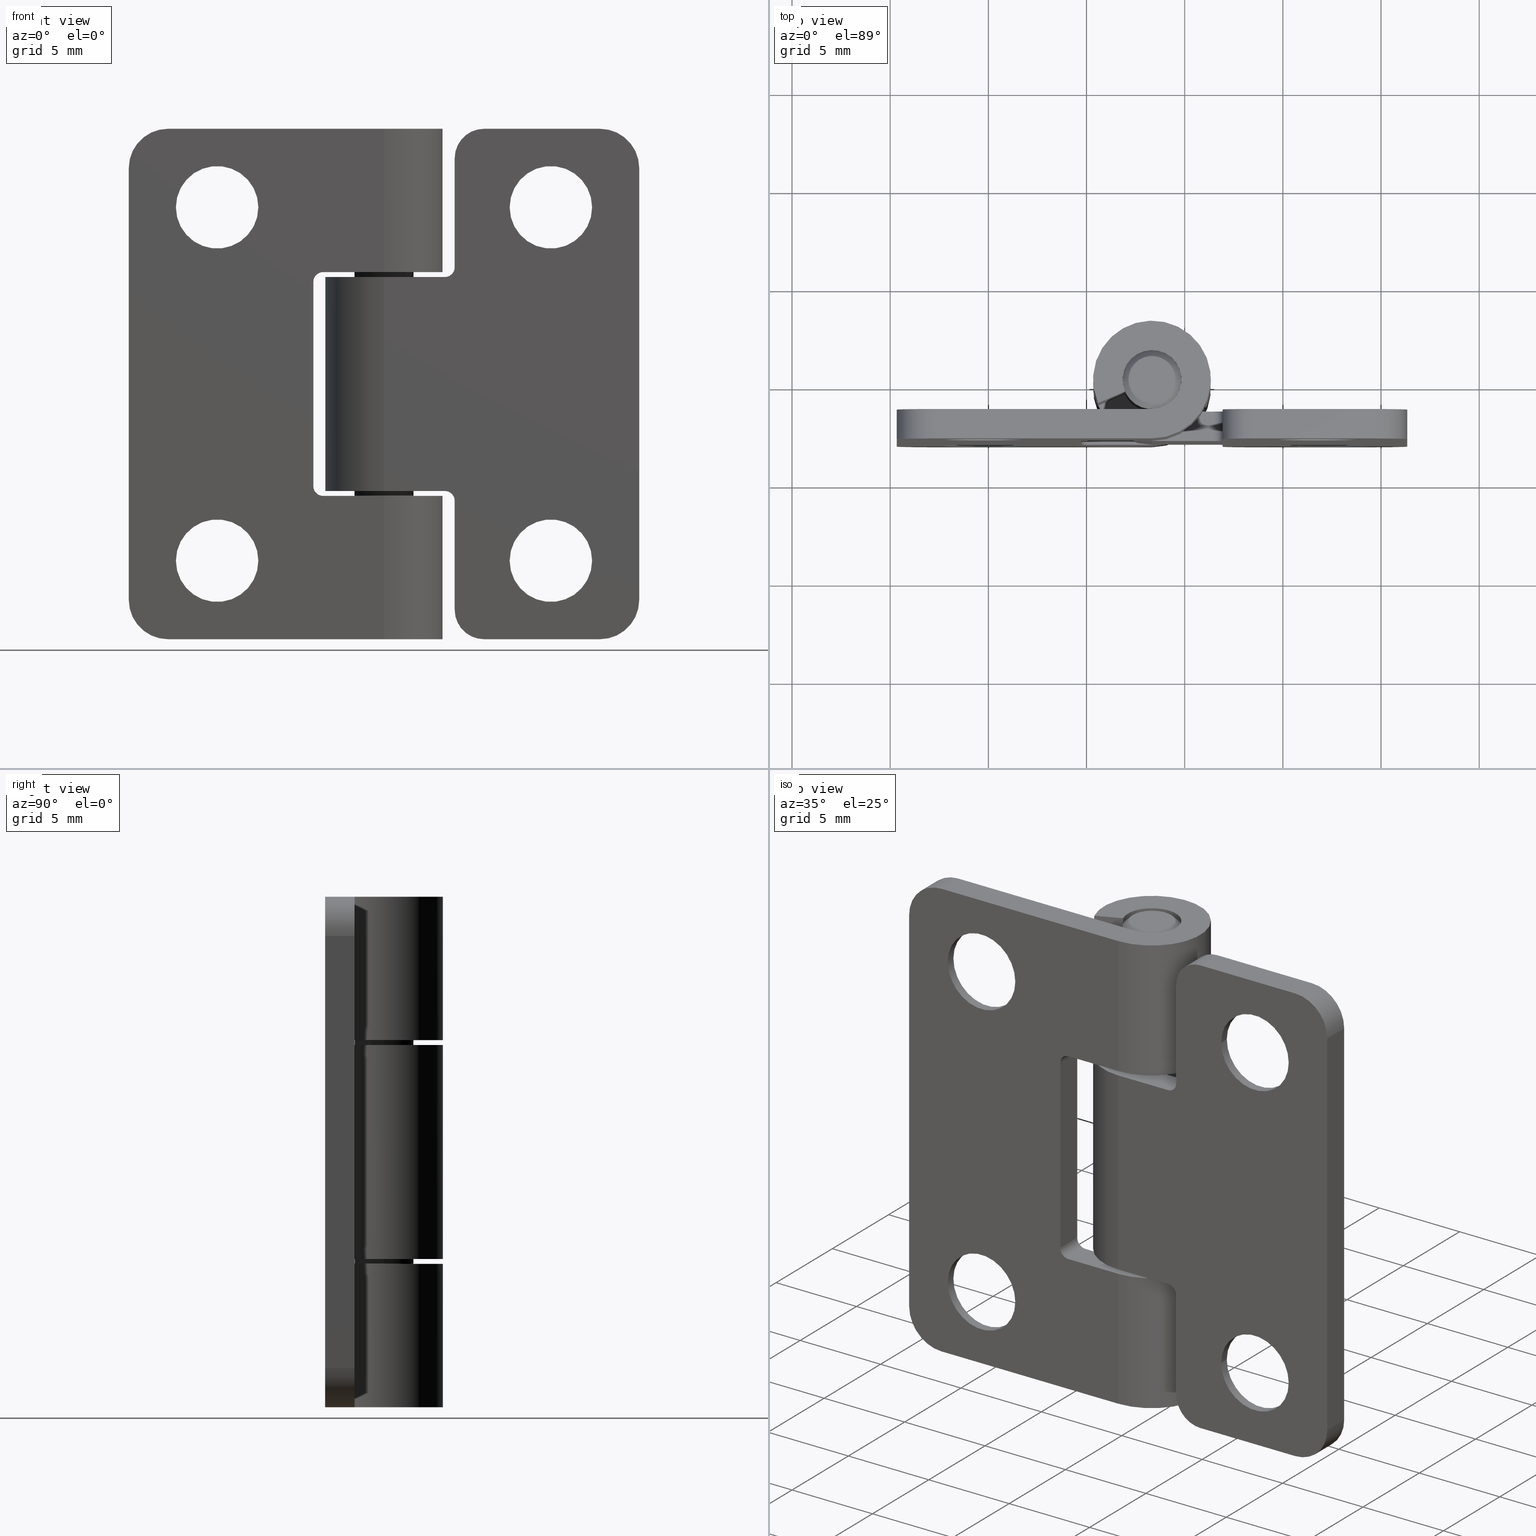
[diagram: canonical four-view strip — front | top / right | iso, engineering-drawing reading convention]
A machine part, canonical four-view strip (front | top / right | iso — engineering-drawing reading convention). The complete STEP part file that produces these views, byte-faithful:
ISO-10303-21;
HEADER;
/* Generated by software containing ST-Developer
 * from STEP Tools, Inc. (www.steptools.com) 
 */

FILE_DESCRIPTION(
/* description */ (''),
/* implementation_level */ '2;1');

FILE_NAME(
/* name */ '\\\\SYNOLOGYNAS\\web\\db2\\H-TC2626-15\\\X2\B3C4BA74\X0\\\
H-TC2626-15.stp',
/* time_stamp */ '2023-02-22T13:30:52+09:00',
/* author */ ('user'),
/* organization */ (''),
/* preprocessor_version */ 'ST-DEVELOPER v15.6',
/* originating_system */ 'Autodesk Inventor 2015',
/* authorisation */ '');

FILE_SCHEMA (('AUTOMOTIVE_DESIGN { 1 0 10303 214 3 1 1 }'));
ENDSEC;

DATA;
#10=MECHANICAL_DESIGN_GEOMETRIC_PRESENTATION_REPRESENTATION('',(#35,#36,
#37),#1503);
#11=(
CONVERSION_BASED_UNIT('degree',#12)
NAMED_UNIT(#26)
PLANE_ANGLE_UNIT()
);
#12=PLANE_ANGLE_MEASURE_WITH_UNIT(PLANE_ANGLE_MEASURE(0.01745329252),#1506);
#13=ITEM_DEFINED_TRANSFORMATION($,$,#870,#971);
#14=ITEM_DEFINED_TRANSFORMATION($,$,#915,#972);
#15=ITEM_DEFINED_TRANSFORMATION($,$,#960,#973);
#16=(
REPRESENTATION_RELATIONSHIP($,$,#1518,#1521)
REPRESENTATION_RELATIONSHIP_WITH_TRANSFORMATION(#13)
SHAPE_REPRESENTATION_RELATIONSHIP()
);
#17=(
REPRESENTATION_RELATIONSHIP($,$,#1519,#1521)
REPRESENTATION_RELATIONSHIP_WITH_TRANSFORMATION(#14)
SHAPE_REPRESENTATION_RELATIONSHIP()
);
#18=(
REPRESENTATION_RELATIONSHIP($,$,#1520,#1521)
REPRESENTATION_RELATIONSHIP_WITH_TRANSFORMATION(#15)
SHAPE_REPRESENTATION_RELATIONSHIP()
);
#19=CONTEXT_DEPENDENT_SHAPE_REPRESENTATION(#16,#1515);
#20=CONTEXT_DEPENDENT_SHAPE_REPRESENTATION(#17,#1516);
#21=CONTEXT_DEPENDENT_SHAPE_REPRESENTATION(#18,#1517);
#22=NEXT_ASSEMBLY_USAGE_OCCURRENCE('26_\X2\B0A0AC1C\X0\1:1',$,$,#1526,#1523,
$);
#23=NEXT_ASSEMBLY_USAGE_OCCURRENCE('26_\X2\B0A0AC1C\X0\2:1',$,$,#1526,#1524,
$);
#24=NEXT_ASSEMBLY_USAGE_OCCURRENCE('26_\X2\D540\X0\:1',$,$,#1526,#1525,
$);
#25=DIMENSIONAL_EXPONENTS(1.,0.,0.,0.,0.,0.,0.);
#26=DIMENSIONAL_EXPONENTS(0.,0.,0.,0.,0.,0.,0.);
#27=(
CONVERSION_BASED_UNIT('__CONSTANT UNIT inch',#28)
LENGTH_UNIT()
NAMED_UNIT(#25)
);
#28=LENGTH_MEASURE_WITH_UNIT(LENGTH_MEASURE(25.4),#1504);
#29=SHAPE_REPRESENTATION_RELATIONSHIP('SRR','None',#1518,#32);
#30=SHAPE_REPRESENTATION_RELATIONSHIP('SRR','None',#1519,#33);
#31=SHAPE_REPRESENTATION_RELATIONSHIP('SRR','None',#1520,#34);
#32=ADVANCED_BREP_SHAPE_REPRESENTATION($,(#38),#1499);
#33=ADVANCED_BREP_SHAPE_REPRESENTATION($,(#39),#1500);
#34=ADVANCED_BREP_SHAPE_REPRESENTATION($,(#40),#1501);
#35=STYLED_ITEM('',(#1542),#38);
#36=STYLED_ITEM('',(#1543),#39);
#37=STYLED_ITEM('',(#1544),#40);
#38=MANIFOLD_SOLID_BREP('\X2\C194B9ACB4DC\X0\2',#867);
#39=MANIFOLD_SOLID_BREP('\X2\C194B9ACB4DC\X0\2',#868);
#40=MANIFOLD_SOLID_BREP('\X2\C194B9ACB4DC\X0\3',#869);
#41=CONICAL_SURFACE('',#902,2.6,0.785398163397448);
#42=CONICAL_SURFACE('',#906,2.6,0.785398163397448);
#43=CONICAL_SURFACE('',#948,2.6,0.785398163397448);
#44=CONICAL_SURFACE('',#952,2.6,0.785398163397448);
#45=CONICAL_SURFACE('',#961,1.35,0.785398163397448);
#46=CONICAL_SURFACE('',#967,1.35,0.785398163397448);
#47=FACE_BOUND('',#143,.T.);
#48=FACE_BOUND('',#144,.T.);
#49=FACE_BOUND('',#154,.T.);
#50=FACE_BOUND('',#156,.T.);
#51=FACE_BOUND('',#158,.T.);
#52=FACE_BOUND('',#160,.T.);
#53=FACE_BOUND('',#163,.T.);
#54=FACE_BOUND('',#164,.T.);
#55=FACE_BOUND('',#170,.T.);
#56=FACE_BOUND('',#171,.T.);
#57=FACE_BOUND('',#184,.T.);
#58=FACE_BOUND('',#186,.T.);
#59=FACE_BOUND('',#188,.T.);
#60=FACE_BOUND('',#190,.T.);
#61=FACE_BOUND('',#194,.T.);
#62=FACE_BOUND('',#195,.T.);
#63=FACE_BOUND('',#198,.T.);
#64=FACE_BOUND('',#200,.T.);
#65=FACE_BOUND('',#203,.T.);
#66=PLANE('',#874);
#67=PLANE('',#880);
#68=PLANE('',#886);
#69=PLANE('',#890);
#70=PLANE('',#893);
#71=PLANE('',#900);
#72=PLANE('',#901);
#73=PLANE('',#910);
#74=PLANE('',#912);
#75=PLANE('',#914);
#76=PLANE('',#919);
#77=PLANE('',#920);
#78=PLANE('',#930);
#79=PLANE('',#935);
#80=PLANE('',#940);
#81=PLANE('',#943);
#82=PLANE('',#946);
#83=PLANE('',#956);
#84=PLANE('',#957);
#85=PLANE('',#958);
#86=PLANE('',#966);
#87=PLANE('',#969);
#88=FACE_OUTER_BOUND('',#137,.T.);
#89=FACE_OUTER_BOUND('',#138,.T.);
#90=FACE_OUTER_BOUND('',#139,.T.);
#91=FACE_OUTER_BOUND('',#140,.T.);
#92=FACE_OUTER_BOUND('',#141,.T.);
#93=FACE_OUTER_BOUND('',#142,.T.);
#94=FACE_OUTER_BOUND('',#145,.T.);
#95=FACE_OUTER_BOUND('',#146,.T.);
#96=FACE_OUTER_BOUND('',#147,.T.);
#97=FACE_OUTER_BOUND('',#148,.T.);
#98=FACE_OUTER_BOUND('',#149,.T.);
#99=FACE_OUTER_BOUND('',#150,.T.);
#100=FACE_OUTER_BOUND('',#151,.T.);
#101=FACE_OUTER_BOUND('',#152,.T.);
#102=FACE_OUTER_BOUND('',#153,.T.);
#103=FACE_OUTER_BOUND('',#155,.T.);
#104=FACE_OUTER_BOUND('',#157,.T.);
#105=FACE_OUTER_BOUND('',#159,.T.);
#106=FACE_OUTER_BOUND('',#161,.T.);
#107=FACE_OUTER_BOUND('',#162,.T.);
#108=FACE_OUTER_BOUND('',#165,.T.);
#109=FACE_OUTER_BOUND('',#166,.T.);
#110=FACE_OUTER_BOUND('',#167,.T.);
#111=FACE_OUTER_BOUND('',#168,.T.);
#112=FACE_OUTER_BOUND('',#169,.T.);
#113=FACE_OUTER_BOUND('',#172,.T.);
#114=FACE_OUTER_BOUND('',#173,.T.);
#115=FACE_OUTER_BOUND('',#174,.T.);
#116=FACE_OUTER_BOUND('',#175,.T.);
#117=FACE_OUTER_BOUND('',#176,.T.);
#118=FACE_OUTER_BOUND('',#177,.T.);
#119=FACE_OUTER_BOUND('',#178,.T.);
#120=FACE_OUTER_BOUND('',#179,.T.);
#121=FACE_OUTER_BOUND('',#180,.T.);
#122=FACE_OUTER_BOUND('',#181,.T.);
#123=FACE_OUTER_BOUND('',#182,.T.);
#124=FACE_OUTER_BOUND('',#183,.T.);
#125=FACE_OUTER_BOUND('',#185,.T.);
#126=FACE_OUTER_BOUND('',#187,.T.);
#127=FACE_OUTER_BOUND('',#189,.T.);
#128=FACE_OUTER_BOUND('',#191,.T.);
#129=FACE_OUTER_BOUND('',#192,.T.);
#130=FACE_OUTER_BOUND('',#193,.T.);
#131=FACE_OUTER_BOUND('',#196,.T.);
#132=FACE_OUTER_BOUND('',#197,.T.);
#133=FACE_OUTER_BOUND('',#199,.T.);
#134=FACE_OUTER_BOUND('',#201,.T.);
#135=FACE_OUTER_BOUND('',#202,.T.);
#136=FACE_OUTER_BOUND('',#204,.T.);
#137=EDGE_LOOP('',(#573,#574,#575,#576));
#138=EDGE_LOOP('',(#577,#578,#579,#580,#581,#582));
#139=EDGE_LOOP('',(#583,#584,#585,#586));
#140=EDGE_LOOP('',(#587,#588,#589,#590,#591,#592));
#141=EDGE_LOOP('',(#593,#594,#595,#596));
#142=EDGE_LOOP('',(#597,#598,#599,#600,#601,#602,#603,#604,#605,#606,#607,
#608));
#143=EDGE_LOOP('',(#609));
#144=EDGE_LOOP('',(#610));
#145=EDGE_LOOP('',(#611,#612,#613,#614));
#146=EDGE_LOOP('',(#615,#616,#617,#618));
#147=EDGE_LOOP('',(#619,#620,#621,#622));
#148=EDGE_LOOP('',(#623,#624,#625,#626));
#149=EDGE_LOOP('',(#627,#628,#629,#630));
#150=EDGE_LOOP('',(#631,#632,#633,#634));
#151=EDGE_LOOP('',(#635,#636,#637,#638));
#152=EDGE_LOOP('',(#639,#640,#641,#642));
#153=EDGE_LOOP('',(#643));
#154=EDGE_LOOP('',(#644));
#155=EDGE_LOOP('',(#645));
#156=EDGE_LOOP('',(#646));
#157=EDGE_LOOP('',(#647));
#158=EDGE_LOOP('',(#648));
#159=EDGE_LOOP('',(#649));
#160=EDGE_LOOP('',(#650));
#161=EDGE_LOOP('',(#651,#652,#653,#654,#655,#656));
#162=EDGE_LOOP('',(#657,#658,#659,#660,#661,#662,#663,#664,#665,#666,#667,
#668));
#163=EDGE_LOOP('',(#669));
#164=EDGE_LOOP('',(#670));
#165=EDGE_LOOP('',(#671,#672,#673,#674));
#166=EDGE_LOOP('',(#675,#676,#677,#678,#679,#680));
#167=EDGE_LOOP('',(#681,#682,#683,#684));
#168=EDGE_LOOP('',(#685,#686,#687,#688));
#169=EDGE_LOOP('',(#689,#690,#691,#692,#693,#694,#695,#696,#697,#698,#699,
#700,#701,#702));
#170=EDGE_LOOP('',(#703));
#171=EDGE_LOOP('',(#704));
#172=EDGE_LOOP('',(#705,#706,#707,#708));
#173=EDGE_LOOP('',(#709,#710,#711,#712));
#174=EDGE_LOOP('',(#713,#714,#715,#716));
#175=EDGE_LOOP('',(#717,#718,#719,#720));
#176=EDGE_LOOP('',(#721,#722,#723,#724,#725,#726));
#177=EDGE_LOOP('',(#727,#728,#729,#730));
#178=EDGE_LOOP('',(#731,#732,#733,#734));
#179=EDGE_LOOP('',(#735,#736,#737,#738));
#180=EDGE_LOOP('',(#739,#740,#741,#742,#743,#744));
#181=EDGE_LOOP('',(#745,#746,#747,#748));
#182=EDGE_LOOP('',(#749,#750,#751,#752));
#183=EDGE_LOOP('',(#753));
#184=EDGE_LOOP('',(#754));
#185=EDGE_LOOP('',(#755));
#186=EDGE_LOOP('',(#756));
#187=EDGE_LOOP('',(#757));
#188=EDGE_LOOP('',(#758));
#189=EDGE_LOOP('',(#759));
#190=EDGE_LOOP('',(#760));
#191=EDGE_LOOP('',(#761,#762,#763,#764));
#192=EDGE_LOOP('',(#765,#766,#767,#768));
#193=EDGE_LOOP('',(#769,#770,#771,#772,#773,#774,#775,#776,#777,#778,#779,
#780,#781,#782));
#194=EDGE_LOOP('',(#783));
#195=EDGE_LOOP('',(#784));
#196=EDGE_LOOP('',(#785,#786,#787,#788));
#197=EDGE_LOOP('',(#789));
#198=EDGE_LOOP('',(#790));
#199=EDGE_LOOP('',(#791));
#200=EDGE_LOOP('',(#792));
#201=EDGE_LOOP('',(#793));
#202=EDGE_LOOP('',(#794));
#203=EDGE_LOOP('',(#795));
#204=EDGE_LOOP('',(#796));
#205=LINE('',#1252,#269);
#206=LINE('',#1255,#270);
#207=LINE('',#1258,#271);
#208=LINE('',#1262,#272);
#209=LINE('',#1265,#273);
#210=LINE('',#1271,#274);
#211=LINE('',#1274,#275);
#212=LINE('',#1277,#276);
#213=LINE('',#1281,#277);
#214=LINE('',#1284,#278);
#215=LINE('',#1290,#279);
#216=LINE('',#1293,#280);
#217=LINE('',#1296,#281);
#218=LINE('',#1300,#282);
#219=LINE('',#1301,#283);
#220=LINE('',#1302,#284);
#221=LINE('',#1304,#285);
#222=LINE('',#1305,#286);
#223=LINE('',#1312,#287);
#224=LINE('',#1313,#288);
#225=LINE('',#1317,#289);
#226=LINE('',#1319,#290);
#227=LINE('',#1322,#291);
#228=LINE('',#1325,#292);
#229=LINE('',#1328,#293);
#230=LINE('',#1333,#294);
#231=LINE('',#1335,#295);
#232=LINE('',#1338,#296);
#233=LINE('',#1339,#297);
#234=LINE('',#1354,#298);
#235=LINE('',#1357,#299);
#236=LINE('',#1358,#300);
#237=LINE('',#1367,#301);
#238=LINE('',#1370,#302);
#239=LINE('',#1373,#303);
#240=LINE('',#1375,#304);
#241=LINE('',#1376,#305);
#242=LINE('',#1379,#306);
#243=LINE('',#1383,#307);
#244=LINE('',#1387,#308);
#245=LINE('',#1391,#309);
#246=LINE('',#1395,#310);
#247=LINE('',#1397,#311);
#248=LINE('',#1399,#312);
#249=LINE('',#1407,#313);
#250=LINE('',#1410,#314);
#251=LINE('',#1413,#315);
#252=LINE('',#1414,#316);
#253=LINE('',#1418,#317);
#254=LINE('',#1423,#318);
#255=LINE('',#1424,#319);
#256=LINE('',#1427,#320);
#257=LINE('',#1431,#321);
#258=LINE('',#1435,#322);
#259=LINE('',#1438,#323);
#260=LINE('',#1440,#324);
#261=LINE('',#1444,#325);
#262=LINE('',#1449,#326);
#263=LINE('',#1452,#327);
#264=LINE('',#1454,#328);
#265=LINE('',#1456,#329);
#266=LINE('',#1470,#330);
#267=LINE('',#1472,#331);
#268=LINE('',#1474,#332);
#269=VECTOR('',#980,1.5);
#270=VECTOR('',#983,1.5);
#271=VECTOR('',#986,3.1);
#272=VECTOR('',#989,1.5);
#273=VECTOR('',#992,3.1);
#274=VECTOR('',#997,1.5);
#275=VECTOR('',#1000,1.5);
#276=VECTOR('',#1003,3.1);
#277=VECTOR('',#1006,1.5);
#278=VECTOR('',#1009,3.1);
#279=VECTOR('',#1014,1.5);
#280=VECTOR('',#1017,1.5);
#281=VECTOR('',#1020,22.);
#282=VECTOR('',#1023,11.);
#283=VECTOR('',#1024,7.3);
#284=VECTOR('',#1025,10.4);
#285=VECTOR('',#1026,7.3);
#286=VECTOR('',#1027,11.);
#287=VECTOR('',#1034,22.);
#288=VECTOR('',#1035,1.5);
#289=VECTOR('',#1040,1.5);
#290=VECTOR('',#1043,10.4);
#291=VECTOR('',#1046,7.3);
#292=VECTOR('',#1049,7.3);
#293=VECTOR('',#1052,7.3);
#294=VECTOR('',#1059,7.3);
#295=VECTOR('',#1062,1.5);
#296=VECTOR('',#1065,1.5);
#297=VECTOR('',#1066,7.3);
#298=VECTOR('',#1085,11.);
#299=VECTOR('',#1090,11.);
#300=VECTOR('',#1091,7.3);
#301=VECTOR('',#1102,1.5);
#302=VECTOR('',#1105,1.5);
#303=VECTOR('',#1108,5.55);
#304=VECTOR('',#1109,1.5);
#305=VECTOR('',#1110,5.55);
#306=VECTOR('',#1113,5.90000000000001);
#307=VECTOR('',#1116,22.);
#308=VECTOR('',#1119,5.89999999999999);
#309=VECTOR('',#1122,5.55);
#310=VECTOR('',#1125,3.1);
#311=VECTOR('',#1126,10.9);
#312=VECTOR('',#1127,3.1);
#313=VECTOR('',#1136,1.5);
#314=VECTOR('',#1139,1.5);
#315=VECTOR('',#1142,1.5);
#316=VECTOR('',#1143,5.89999999999999);
#317=VECTOR('',#1148,1.5);
#318=VECTOR('',#1153,1.5);
#319=VECTOR('',#1154,1.5);
#320=VECTOR('',#1157,3.1);
#321=VECTOR('',#1160,1.5);
#322=VECTOR('',#1165,1.5);
#323=VECTOR('',#1168,1.5);
#324=VECTOR('',#1171,5.90000000000001);
#325=VECTOR('',#1176,1.5);
#326=VECTOR('',#1181,1.5);
#327=VECTOR('',#1184,3.1);
#328=VECTOR('',#1187,5.55);
#329=VECTOR('',#1190,10.9);
#330=VECTOR('',#1209,10.9);
#331=VECTOR('',#1212,22.);
#332=VECTOR('',#1215,10.9);
#333=CIRCLE('',#872,0.5);
#334=CIRCLE('',#873,0.5);
#335=CIRCLE('',#875,3.);
#336=CIRCLE('',#876,1.5);
#337=CIRCLE('',#878,0.5);
#338=CIRCLE('',#879,0.5);
#339=CIRCLE('',#881,1.5);
#340=CIRCLE('',#882,3.);
#341=CIRCLE('',#884,2.);
#342=CIRCLE('',#885,2.);
#343=CIRCLE('',#887,2.);
#344=CIRCLE('',#888,3.1);
#345=CIRCLE('',#889,3.1);
#346=CIRCLE('',#892,2.);
#347=CIRCLE('',#895,3.);
#348=CIRCLE('',#897,1.5);
#349=CIRCLE('',#899,1.5);
#350=CIRCLE('',#903,2.1);
#351=CIRCLE('',#905,2.1);
#352=CIRCLE('',#907,2.1);
#353=CIRCLE('',#909,2.1);
#354=CIRCLE('',#911,3.);
#355=CIRCLE('',#917,1.5);
#356=CIRCLE('',#918,1.5);
#357=CIRCLE('',#921,2.);
#358=CIRCLE('',#922,2.);
#359=CIRCLE('',#923,1.5);
#360=CIRCLE('',#924,0.5);
#361=CIRCLE('',#925,0.5);
#362=CIRCLE('',#926,3.1);
#363=CIRCLE('',#927,3.1);
#364=CIRCLE('',#929,1.5);
#365=CIRCLE('',#932,0.5);
#366=CIRCLE('',#934,0.5);
#367=CIRCLE('',#936,3.);
#368=CIRCLE('',#937,1.5);
#369=CIRCLE('',#939,2.);
#370=CIRCLE('',#942,2.);
#371=CIRCLE('',#944,1.5);
#372=CIRCLE('',#945,3.);
#373=CIRCLE('',#949,2.1);
#374=CIRCLE('',#951,2.1);
#375=CIRCLE('',#953,2.1);
#376=CIRCLE('',#955,2.1);
#377=CIRCLE('',#962,1.5);
#378=CIRCLE('',#963,1.2);
#379=CIRCLE('',#965,1.5);
#380=CIRCLE('',#968,1.2);
#381=VERTEX_POINT('',#1248);
#382=VERTEX_POINT('',#1249);
#383=VERTEX_POINT('',#1251);
#384=VERTEX_POINT('',#1253);
#385=VERTEX_POINT('',#1257);
#386=VERTEX_POINT('',#1259);
#387=VERTEX_POINT('',#1261);
#388=VERTEX_POINT('',#1263);
#389=VERTEX_POINT('',#1267);
#390=VERTEX_POINT('',#1268);
#391=VERTEX_POINT('',#1270);
#392=VERTEX_POINT('',#1272);
#393=VERTEX_POINT('',#1276);
#394=VERTEX_POINT('',#1278);
#395=VERTEX_POINT('',#1280);
#396=VERTEX_POINT('',#1282);
#397=VERTEX_POINT('',#1286);
#398=VERTEX_POINT('',#1287);
#399=VERTEX_POINT('',#1289);
#400=VERTEX_POINT('',#1291);
#401=VERTEX_POINT('',#1295);
#402=VERTEX_POINT('',#1297);
#403=VERTEX_POINT('',#1299);
#404=VERTEX_POINT('',#1303);
#405=VERTEX_POINT('',#1306);
#406=VERTEX_POINT('',#1308);
#407=VERTEX_POINT('',#1311);
#408=VERTEX_POINT('',#1315);
#409=VERTEX_POINT('',#1321);
#410=VERTEX_POINT('',#1323);
#411=VERTEX_POINT('',#1327);
#412=VERTEX_POINT('',#1331);
#413=VERTEX_POINT('',#1337);
#414=VERTEX_POINT('',#1341);
#415=VERTEX_POINT('',#1344);
#416=VERTEX_POINT('',#1347);
#417=VERTEX_POINT('',#1350);
#418=VERTEX_POINT('',#1353);
#419=VERTEX_POINT('',#1363);
#420=VERTEX_POINT('',#1364);
#421=VERTEX_POINT('',#1366);
#422=VERTEX_POINT('',#1368);
#423=VERTEX_POINT('',#1372);
#424=VERTEX_POINT('',#1374);
#425=VERTEX_POINT('',#1378);
#426=VERTEX_POINT('',#1380);
#427=VERTEX_POINT('',#1382);
#428=VERTEX_POINT('',#1384);
#429=VERTEX_POINT('',#1386);
#430=VERTEX_POINT('',#1388);
#431=VERTEX_POINT('',#1390);
#432=VERTEX_POINT('',#1392);
#433=VERTEX_POINT('',#1394);
#434=VERTEX_POINT('',#1396);
#435=VERTEX_POINT('',#1398);
#436=VERTEX_POINT('',#1401);
#437=VERTEX_POINT('',#1403);
#438=VERTEX_POINT('',#1406);
#439=VERTEX_POINT('',#1408);
#440=VERTEX_POINT('',#1412);
#441=VERTEX_POINT('',#1416);
#442=VERTEX_POINT('',#1420);
#443=VERTEX_POINT('',#1421);
#444=VERTEX_POINT('',#1426);
#445=VERTEX_POINT('',#1428);
#446=VERTEX_POINT('',#1430);
#447=VERTEX_POINT('',#1434);
#448=VERTEX_POINT('',#1436);
#449=VERTEX_POINT('',#1442);
#450=VERTEX_POINT('',#1446);
#451=VERTEX_POINT('',#1448);
#452=VERTEX_POINT('',#1450);
#453=VERTEX_POINT('',#1458);
#454=VERTEX_POINT('',#1461);
#455=VERTEX_POINT('',#1464);
#456=VERTEX_POINT('',#1467);
#457=VERTEX_POINT('',#1478);
#458=VERTEX_POINT('',#1480);
#459=VERTEX_POINT('',#1483);
#460=VERTEX_POINT('',#1487);
#461=EDGE_CURVE('',#381,#382,#333,.T.);
#462=EDGE_CURVE('',#382,#383,#205,.T.);
#463=EDGE_CURVE('',#383,#384,#334,.T.);
#464=EDGE_CURVE('',#384,#381,#206,.T.);
#465=EDGE_CURVE('',#385,#382,#207,.T.);
#466=EDGE_CURVE('',#386,#385,#335,.T.);
#467=EDGE_CURVE('',#387,#386,#208,.T.);
#468=EDGE_CURVE('',#388,#387,#336,.T.);
#469=EDGE_CURVE('',#383,#388,#209,.T.);
#470=EDGE_CURVE('',#389,#390,#337,.T.);
#471=EDGE_CURVE('',#390,#391,#210,.T.);
#472=EDGE_CURVE('',#391,#392,#338,.T.);
#473=EDGE_CURVE('',#392,#389,#211,.T.);
#474=EDGE_CURVE('',#393,#390,#212,.T.);
#475=EDGE_CURVE('',#394,#393,#339,.T.);
#476=EDGE_CURVE('',#395,#394,#213,.T.);
#477=EDGE_CURVE('',#396,#395,#340,.T.);
#478=EDGE_CURVE('',#391,#396,#214,.T.);
#479=EDGE_CURVE('',#397,#398,#341,.T.);
#480=EDGE_CURVE('',#398,#399,#215,.T.);
#481=EDGE_CURVE('',#399,#400,#342,.T.);
#482=EDGE_CURVE('',#400,#397,#216,.T.);
#483=EDGE_CURVE('',#401,#397,#217,.T.);
#484=EDGE_CURVE('',#402,#401,#343,.T.);
#485=EDGE_CURVE('',#403,#402,#218,.T.);
#486=EDGE_CURVE('',#403,#393,#219,.T.);
#487=EDGE_CURVE('',#389,#384,#220,.T.);
#488=EDGE_CURVE('',#388,#404,#221,.T.);
#489=EDGE_CURVE('',#398,#404,#222,.T.);
#490=EDGE_CURVE('',#405,#405,#344,.T.);
#491=EDGE_CURVE('',#406,#406,#345,.T.);
#492=EDGE_CURVE('',#407,#400,#223,.T.);
#493=EDGE_CURVE('',#401,#407,#224,.T.);
#494=EDGE_CURVE('',#407,#408,#346,.T.);
#495=EDGE_CURVE('',#408,#402,#225,.T.);
#496=EDGE_CURVE('',#381,#392,#226,.T.);
#497=EDGE_CURVE('',#385,#409,#227,.T.);
#498=EDGE_CURVE('',#410,#409,#347,.T.);
#499=EDGE_CURVE('',#410,#386,#228,.T.);
#500=EDGE_CURVE('',#387,#411,#229,.T.);
#501=EDGE_CURVE('',#404,#411,#348,.T.);
#502=EDGE_CURVE('',#412,#403,#349,.T.);
#503=EDGE_CURVE('',#412,#394,#230,.T.);
#504=EDGE_CURVE('',#411,#410,#231,.T.);
#505=EDGE_CURVE('',#413,#412,#232,.T.);
#506=EDGE_CURVE('',#395,#413,#233,.T.);
#507=EDGE_CURVE('',#414,#414,#350,.T.);
#508=EDGE_CURVE('',#415,#415,#351,.T.);
#509=EDGE_CURVE('',#416,#416,#352,.T.);
#510=EDGE_CURVE('',#417,#417,#353,.T.);
#511=EDGE_CURVE('',#408,#418,#234,.T.);
#512=EDGE_CURVE('',#418,#413,#354,.T.);
#513=EDGE_CURVE('',#409,#399,#235,.T.);
#514=EDGE_CURVE('',#418,#396,#236,.T.);
#515=EDGE_CURVE('',#419,#420,#355,.T.);
#516=EDGE_CURVE('',#420,#421,#237,.T.);
#517=EDGE_CURVE('',#421,#422,#356,.T.);
#518=EDGE_CURVE('',#422,#419,#238,.T.);
#519=EDGE_CURVE('',#423,#422,#239,.T.);
#520=EDGE_CURVE('',#424,#423,#240,.T.);
#521=EDGE_CURVE('',#419,#424,#241,.T.);
#522=EDGE_CURVE('',#425,#421,#242,.T.);
#523=EDGE_CURVE('',#426,#425,#357,.T.);
#524=EDGE_CURVE('',#427,#426,#243,.T.);
#525=EDGE_CURVE('',#428,#427,#358,.T.);
#526=EDGE_CURVE('',#429,#428,#244,.T.);
#527=EDGE_CURVE('',#430,#429,#359,.T.);
#528=EDGE_CURVE('',#430,#431,#245,.T.);
#529=EDGE_CURVE('',#432,#431,#360,.T.);
#530=EDGE_CURVE('',#432,#433,#246,.T.);
#531=EDGE_CURVE('',#433,#434,#247,.T.);
#532=EDGE_CURVE('',#434,#435,#248,.T.);
#533=EDGE_CURVE('',#423,#435,#361,.T.);
#534=EDGE_CURVE('',#436,#436,#362,.T.);
#535=EDGE_CURVE('',#437,#437,#363,.T.);
#536=EDGE_CURVE('',#429,#438,#249,.T.);
#537=EDGE_CURVE('',#438,#439,#364,.T.);
#538=EDGE_CURVE('',#439,#430,#250,.T.);
#539=EDGE_CURVE('',#440,#428,#251,.T.);
#540=EDGE_CURVE('',#440,#438,#252,.T.);
#541=EDGE_CURVE('',#441,#424,#365,.T.);
#542=EDGE_CURVE('',#435,#441,#253,.T.);
#543=EDGE_CURVE('',#442,#443,#366,.T.);
#544=EDGE_CURVE('',#443,#432,#254,.T.);
#545=EDGE_CURVE('',#431,#442,#255,.T.);
#546=EDGE_CURVE('',#444,#443,#256,.T.);
#547=EDGE_CURVE('',#445,#444,#367,.T.);
#548=EDGE_CURVE('',#446,#445,#257,.T.);
#549=EDGE_CURVE('',#433,#446,#368,.T.);
#550=EDGE_CURVE('',#425,#447,#258,.T.);
#551=EDGE_CURVE('',#447,#448,#369,.T.);
#552=EDGE_CURVE('',#448,#426,#259,.T.);
#553=EDGE_CURVE('',#420,#447,#260,.T.);
#554=EDGE_CURVE('',#449,#440,#370,.T.);
#555=EDGE_CURVE('',#427,#449,#261,.T.);
#556=EDGE_CURVE('',#450,#434,#371,.T.);
#557=EDGE_CURVE('',#451,#450,#262,.T.);
#558=EDGE_CURVE('',#452,#451,#372,.T.);
#559=EDGE_CURVE('',#441,#452,#263,.T.);
#560=EDGE_CURVE('',#442,#439,#264,.T.);
#561=EDGE_CURVE('',#446,#450,#265,.T.);
#562=EDGE_CURVE('',#453,#453,#373,.T.);
#563=EDGE_CURVE('',#454,#454,#374,.T.);
#564=EDGE_CURVE('',#455,#455,#375,.T.);
#565=EDGE_CURVE('',#456,#456,#376,.T.);
#566=EDGE_CURVE('',#451,#445,#266,.T.);
#567=EDGE_CURVE('',#449,#448,#267,.T.);
#568=EDGE_CURVE('',#444,#452,#268,.T.);
#569=EDGE_CURVE('',#457,#457,#377,.T.);
#570=EDGE_CURVE('',#458,#458,#378,.T.);
#571=EDGE_CURVE('',#459,#459,#379,.T.);
#572=EDGE_CURVE('',#460,#460,#380,.T.);
#573=ORIENTED_EDGE('',*,*,#461,.T.);
#574=ORIENTED_EDGE('',*,*,#462,.T.);
#575=ORIENTED_EDGE('',*,*,#463,.T.);
#576=ORIENTED_EDGE('',*,*,#464,.T.);
#577=ORIENTED_EDGE('',*,*,#462,.F.);
#578=ORIENTED_EDGE('',*,*,#465,.F.);
#579=ORIENTED_EDGE('',*,*,#466,.F.);
#580=ORIENTED_EDGE('',*,*,#467,.F.);
#581=ORIENTED_EDGE('',*,*,#468,.F.);
#582=ORIENTED_EDGE('',*,*,#469,.F.);
#583=ORIENTED_EDGE('',*,*,#470,.T.);
#584=ORIENTED_EDGE('',*,*,#471,.T.);
#585=ORIENTED_EDGE('',*,*,#472,.T.);
#586=ORIENTED_EDGE('',*,*,#473,.T.);
#587=ORIENTED_EDGE('',*,*,#471,.F.);
#588=ORIENTED_EDGE('',*,*,#474,.F.);
#589=ORIENTED_EDGE('',*,*,#475,.F.);
#590=ORIENTED_EDGE('',*,*,#476,.F.);
#591=ORIENTED_EDGE('',*,*,#477,.F.);
#592=ORIENTED_EDGE('',*,*,#478,.F.);
#593=ORIENTED_EDGE('',*,*,#479,.T.);
#594=ORIENTED_EDGE('',*,*,#480,.T.);
#595=ORIENTED_EDGE('',*,*,#481,.T.);
#596=ORIENTED_EDGE('',*,*,#482,.T.);
#597=ORIENTED_EDGE('',*,*,#479,.F.);
#598=ORIENTED_EDGE('',*,*,#483,.F.);
#599=ORIENTED_EDGE('',*,*,#484,.F.);
#600=ORIENTED_EDGE('',*,*,#485,.F.);
#601=ORIENTED_EDGE('',*,*,#486,.T.);
#602=ORIENTED_EDGE('',*,*,#474,.T.);
#603=ORIENTED_EDGE('',*,*,#470,.F.);
#604=ORIENTED_EDGE('',*,*,#487,.T.);
#605=ORIENTED_EDGE('',*,*,#463,.F.);
#606=ORIENTED_EDGE('',*,*,#469,.T.);
#607=ORIENTED_EDGE('',*,*,#488,.T.);
#608=ORIENTED_EDGE('',*,*,#489,.F.);
#609=ORIENTED_EDGE('',*,*,#490,.T.);
#610=ORIENTED_EDGE('',*,*,#491,.T.);
#611=ORIENTED_EDGE('',*,*,#482,.F.);
#612=ORIENTED_EDGE('',*,*,#492,.F.);
#613=ORIENTED_EDGE('',*,*,#493,.F.);
#614=ORIENTED_EDGE('',*,*,#483,.T.);
#615=ORIENTED_EDGE('',*,*,#494,.T.);
#616=ORIENTED_EDGE('',*,*,#495,.T.);
#617=ORIENTED_EDGE('',*,*,#484,.T.);
#618=ORIENTED_EDGE('',*,*,#493,.T.);
#619=ORIENTED_EDGE('',*,*,#464,.F.);
#620=ORIENTED_EDGE('',*,*,#487,.F.);
#621=ORIENTED_EDGE('',*,*,#473,.F.);
#622=ORIENTED_EDGE('',*,*,#496,.F.);
#623=ORIENTED_EDGE('',*,*,#466,.T.);
#624=ORIENTED_EDGE('',*,*,#497,.T.);
#625=ORIENTED_EDGE('',*,*,#498,.F.);
#626=ORIENTED_EDGE('',*,*,#499,.T.);
#627=ORIENTED_EDGE('',*,*,#468,.T.);
#628=ORIENTED_EDGE('',*,*,#500,.T.);
#629=ORIENTED_EDGE('',*,*,#501,.F.);
#630=ORIENTED_EDGE('',*,*,#488,.F.);
#631=ORIENTED_EDGE('',*,*,#475,.T.);
#632=ORIENTED_EDGE('',*,*,#486,.F.);
#633=ORIENTED_EDGE('',*,*,#502,.F.);
#634=ORIENTED_EDGE('',*,*,#503,.T.);
#635=ORIENTED_EDGE('',*,*,#467,.T.);
#636=ORIENTED_EDGE('',*,*,#499,.F.);
#637=ORIENTED_EDGE('',*,*,#504,.F.);
#638=ORIENTED_EDGE('',*,*,#500,.F.);
#639=ORIENTED_EDGE('',*,*,#476,.T.);
#640=ORIENTED_EDGE('',*,*,#503,.F.);
#641=ORIENTED_EDGE('',*,*,#505,.F.);
#642=ORIENTED_EDGE('',*,*,#506,.F.);
#643=ORIENTED_EDGE('',*,*,#507,.F.);
#644=ORIENTED_EDGE('',*,*,#491,.F.);
#645=ORIENTED_EDGE('',*,*,#508,.F.);
#646=ORIENTED_EDGE('',*,*,#507,.T.);
#647=ORIENTED_EDGE('',*,*,#509,.F.);
#648=ORIENTED_EDGE('',*,*,#490,.F.);
#649=ORIENTED_EDGE('',*,*,#510,.F.);
#650=ORIENTED_EDGE('',*,*,#509,.T.);
#651=ORIENTED_EDGE('',*,*,#495,.F.);
#652=ORIENTED_EDGE('',*,*,#511,.T.);
#653=ORIENTED_EDGE('',*,*,#512,.T.);
#654=ORIENTED_EDGE('',*,*,#505,.T.);
#655=ORIENTED_EDGE('',*,*,#502,.T.);
#656=ORIENTED_EDGE('',*,*,#485,.T.);
#657=ORIENTED_EDGE('',*,*,#481,.F.);
#658=ORIENTED_EDGE('',*,*,#513,.F.);
#659=ORIENTED_EDGE('',*,*,#497,.F.);
#660=ORIENTED_EDGE('',*,*,#465,.T.);
#661=ORIENTED_EDGE('',*,*,#461,.F.);
#662=ORIENTED_EDGE('',*,*,#496,.T.);
#663=ORIENTED_EDGE('',*,*,#472,.F.);
#664=ORIENTED_EDGE('',*,*,#478,.T.);
#665=ORIENTED_EDGE('',*,*,#514,.F.);
#666=ORIENTED_EDGE('',*,*,#511,.F.);
#667=ORIENTED_EDGE('',*,*,#494,.F.);
#668=ORIENTED_EDGE('',*,*,#492,.T.);
#669=ORIENTED_EDGE('',*,*,#508,.T.);
#670=ORIENTED_EDGE('',*,*,#510,.T.);
#671=ORIENTED_EDGE('',*,*,#477,.T.);
#672=ORIENTED_EDGE('',*,*,#506,.T.);
#673=ORIENTED_EDGE('',*,*,#512,.F.);
#674=ORIENTED_EDGE('',*,*,#514,.T.);
#675=ORIENTED_EDGE('',*,*,#480,.F.);
#676=ORIENTED_EDGE('',*,*,#489,.T.);
#677=ORIENTED_EDGE('',*,*,#501,.T.);
#678=ORIENTED_EDGE('',*,*,#504,.T.);
#679=ORIENTED_EDGE('',*,*,#498,.T.);
#680=ORIENTED_EDGE('',*,*,#513,.T.);
#681=ORIENTED_EDGE('',*,*,#515,.T.);
#682=ORIENTED_EDGE('',*,*,#516,.T.);
#683=ORIENTED_EDGE('',*,*,#517,.T.);
#684=ORIENTED_EDGE('',*,*,#518,.T.);
#685=ORIENTED_EDGE('',*,*,#518,.F.);
#686=ORIENTED_EDGE('',*,*,#519,.F.);
#687=ORIENTED_EDGE('',*,*,#520,.F.);
#688=ORIENTED_EDGE('',*,*,#521,.F.);
#689=ORIENTED_EDGE('',*,*,#517,.F.);
#690=ORIENTED_EDGE('',*,*,#522,.F.);
#691=ORIENTED_EDGE('',*,*,#523,.F.);
#692=ORIENTED_EDGE('',*,*,#524,.F.);
#693=ORIENTED_EDGE('',*,*,#525,.F.);
#694=ORIENTED_EDGE('',*,*,#526,.F.);
#695=ORIENTED_EDGE('',*,*,#527,.F.);
#696=ORIENTED_EDGE('',*,*,#528,.T.);
#697=ORIENTED_EDGE('',*,*,#529,.F.);
#698=ORIENTED_EDGE('',*,*,#530,.T.);
#699=ORIENTED_EDGE('',*,*,#531,.T.);
#700=ORIENTED_EDGE('',*,*,#532,.T.);
#701=ORIENTED_EDGE('',*,*,#533,.F.);
#702=ORIENTED_EDGE('',*,*,#519,.T.);
#703=ORIENTED_EDGE('',*,*,#534,.T.);
#704=ORIENTED_EDGE('',*,*,#535,.T.);
#705=ORIENTED_EDGE('',*,*,#527,.T.);
#706=ORIENTED_EDGE('',*,*,#536,.T.);
#707=ORIENTED_EDGE('',*,*,#537,.T.);
#708=ORIENTED_EDGE('',*,*,#538,.T.);
#709=ORIENTED_EDGE('',*,*,#536,.F.);
#710=ORIENTED_EDGE('',*,*,#526,.T.);
#711=ORIENTED_EDGE('',*,*,#539,.F.);
#712=ORIENTED_EDGE('',*,*,#540,.T.);
#713=ORIENTED_EDGE('',*,*,#541,.T.);
#714=ORIENTED_EDGE('',*,*,#520,.T.);
#715=ORIENTED_EDGE('',*,*,#533,.T.);
#716=ORIENTED_EDGE('',*,*,#542,.T.);
#717=ORIENTED_EDGE('',*,*,#543,.T.);
#718=ORIENTED_EDGE('',*,*,#544,.T.);
#719=ORIENTED_EDGE('',*,*,#529,.T.);
#720=ORIENTED_EDGE('',*,*,#545,.T.);
#721=ORIENTED_EDGE('',*,*,#544,.F.);
#722=ORIENTED_EDGE('',*,*,#546,.F.);
#723=ORIENTED_EDGE('',*,*,#547,.F.);
#724=ORIENTED_EDGE('',*,*,#548,.F.);
#725=ORIENTED_EDGE('',*,*,#549,.F.);
#726=ORIENTED_EDGE('',*,*,#530,.F.);
#727=ORIENTED_EDGE('',*,*,#523,.T.);
#728=ORIENTED_EDGE('',*,*,#550,.T.);
#729=ORIENTED_EDGE('',*,*,#551,.T.);
#730=ORIENTED_EDGE('',*,*,#552,.T.);
#731=ORIENTED_EDGE('',*,*,#516,.F.);
#732=ORIENTED_EDGE('',*,*,#553,.T.);
#733=ORIENTED_EDGE('',*,*,#550,.F.);
#734=ORIENTED_EDGE('',*,*,#522,.T.);
#735=ORIENTED_EDGE('',*,*,#554,.T.);
#736=ORIENTED_EDGE('',*,*,#539,.T.);
#737=ORIENTED_EDGE('',*,*,#525,.T.);
#738=ORIENTED_EDGE('',*,*,#555,.T.);
#739=ORIENTED_EDGE('',*,*,#542,.F.);
#740=ORIENTED_EDGE('',*,*,#532,.F.);
#741=ORIENTED_EDGE('',*,*,#556,.F.);
#742=ORIENTED_EDGE('',*,*,#557,.F.);
#743=ORIENTED_EDGE('',*,*,#558,.F.);
#744=ORIENTED_EDGE('',*,*,#559,.F.);
#745=ORIENTED_EDGE('',*,*,#538,.F.);
#746=ORIENTED_EDGE('',*,*,#560,.F.);
#747=ORIENTED_EDGE('',*,*,#545,.F.);
#748=ORIENTED_EDGE('',*,*,#528,.F.);
#749=ORIENTED_EDGE('',*,*,#556,.T.);
#750=ORIENTED_EDGE('',*,*,#531,.F.);
#751=ORIENTED_EDGE('',*,*,#549,.T.);
#752=ORIENTED_EDGE('',*,*,#561,.T.);
#753=ORIENTED_EDGE('',*,*,#562,.F.);
#754=ORIENTED_EDGE('',*,*,#535,.F.);
#755=ORIENTED_EDGE('',*,*,#563,.F.);
#756=ORIENTED_EDGE('',*,*,#562,.T.);
#757=ORIENTED_EDGE('',*,*,#564,.F.);
#758=ORIENTED_EDGE('',*,*,#534,.F.);
#759=ORIENTED_EDGE('',*,*,#565,.F.);
#760=ORIENTED_EDGE('',*,*,#564,.T.);
#761=ORIENTED_EDGE('',*,*,#557,.T.);
#762=ORIENTED_EDGE('',*,*,#561,.F.);
#763=ORIENTED_EDGE('',*,*,#548,.T.);
#764=ORIENTED_EDGE('',*,*,#566,.F.);
#765=ORIENTED_EDGE('',*,*,#552,.F.);
#766=ORIENTED_EDGE('',*,*,#567,.F.);
#767=ORIENTED_EDGE('',*,*,#555,.F.);
#768=ORIENTED_EDGE('',*,*,#524,.T.);
#769=ORIENTED_EDGE('',*,*,#515,.F.);
#770=ORIENTED_EDGE('',*,*,#521,.T.);
#771=ORIENTED_EDGE('',*,*,#541,.F.);
#772=ORIENTED_EDGE('',*,*,#559,.T.);
#773=ORIENTED_EDGE('',*,*,#568,.F.);
#774=ORIENTED_EDGE('',*,*,#546,.T.);
#775=ORIENTED_EDGE('',*,*,#543,.F.);
#776=ORIENTED_EDGE('',*,*,#560,.T.);
#777=ORIENTED_EDGE('',*,*,#537,.F.);
#778=ORIENTED_EDGE('',*,*,#540,.F.);
#779=ORIENTED_EDGE('',*,*,#554,.F.);
#780=ORIENTED_EDGE('',*,*,#567,.T.);
#781=ORIENTED_EDGE('',*,*,#551,.F.);
#782=ORIENTED_EDGE('',*,*,#553,.F.);
#783=ORIENTED_EDGE('',*,*,#563,.T.);
#784=ORIENTED_EDGE('',*,*,#565,.T.);
#785=ORIENTED_EDGE('',*,*,#558,.T.);
#786=ORIENTED_EDGE('',*,*,#566,.T.);
#787=ORIENTED_EDGE('',*,*,#547,.T.);
#788=ORIENTED_EDGE('',*,*,#568,.T.);
#789=ORIENTED_EDGE('',*,*,#569,.T.);
#790=ORIENTED_EDGE('',*,*,#570,.T.);
#791=ORIENTED_EDGE('',*,*,#569,.F.);
#792=ORIENTED_EDGE('',*,*,#571,.F.);
#793=ORIENTED_EDGE('',*,*,#570,.F.);
#794=ORIENTED_EDGE('',*,*,#571,.T.);
#795=ORIENTED_EDGE('',*,*,#572,.T.);
#796=ORIENTED_EDGE('',*,*,#572,.F.);
#797=CYLINDRICAL_SURFACE('',#871,0.5);
#798=CYLINDRICAL_SURFACE('',#877,0.5);
#799=CYLINDRICAL_SURFACE('',#883,2.);
#800=CYLINDRICAL_SURFACE('',#891,2.);
#801=CYLINDRICAL_SURFACE('',#894,3.);
#802=CYLINDRICAL_SURFACE('',#896,1.5);
#803=CYLINDRICAL_SURFACE('',#898,1.5);
#804=CYLINDRICAL_SURFACE('',#904,2.1);
#805=CYLINDRICAL_SURFACE('',#908,2.1);
#806=CYLINDRICAL_SURFACE('',#913,3.);
#807=CYLINDRICAL_SURFACE('',#916,1.5);
#808=CYLINDRICAL_SURFACE('',#928,1.5);
#809=CYLINDRICAL_SURFACE('',#931,0.5);
#810=CYLINDRICAL_SURFACE('',#933,0.5);
#811=CYLINDRICAL_SURFACE('',#938,2.);
#812=CYLINDRICAL_SURFACE('',#941,2.);
#813=CYLINDRICAL_SURFACE('',#947,1.5);
#814=CYLINDRICAL_SURFACE('',#950,2.1);
#815=CYLINDRICAL_SURFACE('',#954,2.1);
#816=CYLINDRICAL_SURFACE('',#959,3.);
#817=CYLINDRICAL_SURFACE('',#964,1.5);
#818=ADVANCED_FACE('',(#88),#797,.F.);
#819=ADVANCED_FACE('',(#89),#66,.F.);
#820=ADVANCED_FACE('',(#90),#798,.F.);
#821=ADVANCED_FACE('',(#91),#67,.F.);
#822=ADVANCED_FACE('',(#92),#799,.T.);
#823=ADVANCED_FACE('',(#93,#47,#48),#68,.T.);
#824=ADVANCED_FACE('',(#94),#69,.T.);
#825=ADVANCED_FACE('',(#95),#800,.T.);
#826=ADVANCED_FACE('',(#96),#70,.F.);
#827=ADVANCED_FACE('',(#97),#801,.T.);
#828=ADVANCED_FACE('',(#98),#802,.F.);
#829=ADVANCED_FACE('',(#99),#803,.F.);
#830=ADVANCED_FACE('',(#100),#71,.T.);
#831=ADVANCED_FACE('',(#101),#72,.T.);
#832=ADVANCED_FACE('',(#102,#49),#41,.F.);
#833=ADVANCED_FACE('',(#103,#50),#804,.F.);
#834=ADVANCED_FACE('',(#104,#51),#42,.F.);
#835=ADVANCED_FACE('',(#105,#52),#805,.F.);
#836=ADVANCED_FACE('',(#106),#73,.F.);
#837=ADVANCED_FACE('',(#107,#53,#54),#74,.T.);
#838=ADVANCED_FACE('',(#108),#806,.T.);
#839=ADVANCED_FACE('',(#109),#75,.T.);
#840=ADVANCED_FACE('',(#110),#807,.T.);
#841=ADVANCED_FACE('',(#111),#76,.F.);
#842=ADVANCED_FACE('',(#112,#55,#56),#77,.T.);
#843=ADVANCED_FACE('',(#113),#808,.T.);
#844=ADVANCED_FACE('',(#114),#78,.F.);
#845=ADVANCED_FACE('',(#115),#809,.F.);
#846=ADVANCED_FACE('',(#116),#810,.F.);
#847=ADVANCED_FACE('',(#117),#79,.F.);
#848=ADVANCED_FACE('',(#118),#811,.T.);
#849=ADVANCED_FACE('',(#119),#80,.T.);
#850=ADVANCED_FACE('',(#120),#812,.T.);
#851=ADVANCED_FACE('',(#121),#81,.F.);
#852=ADVANCED_FACE('',(#122),#82,.F.);
#853=ADVANCED_FACE('',(#123),#813,.F.);
#854=ADVANCED_FACE('',(#124,#57),#43,.F.);
#855=ADVANCED_FACE('',(#125,#58),#814,.F.);
#856=ADVANCED_FACE('',(#126,#59),#44,.F.);
#857=ADVANCED_FACE('',(#127,#60),#815,.F.);
#858=ADVANCED_FACE('',(#128),#83,.T.);
#859=ADVANCED_FACE('',(#129),#84,.T.);
#860=ADVANCED_FACE('',(#130,#61,#62),#85,.T.);
#861=ADVANCED_FACE('',(#131),#816,.T.);
#862=ADVANCED_FACE('',(#132,#63),#45,.T.);
#863=ADVANCED_FACE('',(#133,#64),#817,.T.);
#864=ADVANCED_FACE('',(#134),#86,.F.);
#865=ADVANCED_FACE('',(#135,#65),#46,.T.);
#866=ADVANCED_FACE('',(#136),#87,.T.);
#867=CLOSED_SHELL('',(#818,#819,#820,#821,#822,#823,#824,#825,#826,#827,
#828,#829,#830,#831,#832,#833,#834,#835,#836,#837,#838,#839));
#868=CLOSED_SHELL('',(#840,#841,#842,#843,#844,#845,#846,#847,#848,#849,
#850,#851,#852,#853,#854,#855,#856,#857,#858,#859,#860,#861));
#869=CLOSED_SHELL('',(#862,#863,#864,#865,#866));
#870=AXIS2_PLACEMENT_3D('placement',#1246,#974,#975);
#871=AXIS2_PLACEMENT_3D('',#1247,#976,#977);
#872=AXIS2_PLACEMENT_3D('',#1250,#978,#979);
#873=AXIS2_PLACEMENT_3D('',#1254,#981,#982);
#874=AXIS2_PLACEMENT_3D('',#1256,#984,#985);
#875=AXIS2_PLACEMENT_3D('',#1260,#987,#988);
#876=AXIS2_PLACEMENT_3D('',#1264,#990,#991);
#877=AXIS2_PLACEMENT_3D('',#1266,#993,#994);
#878=AXIS2_PLACEMENT_3D('',#1269,#995,#996);
#879=AXIS2_PLACEMENT_3D('',#1273,#998,#999);
#880=AXIS2_PLACEMENT_3D('',#1275,#1001,#1002);
#881=AXIS2_PLACEMENT_3D('',#1279,#1004,#1005);
#882=AXIS2_PLACEMENT_3D('',#1283,#1007,#1008);
#883=AXIS2_PLACEMENT_3D('',#1285,#1010,#1011);
#884=AXIS2_PLACEMENT_3D('',#1288,#1012,#1013);
#885=AXIS2_PLACEMENT_3D('',#1292,#1015,#1016);
#886=AXIS2_PLACEMENT_3D('',#1294,#1018,#1019);
#887=AXIS2_PLACEMENT_3D('',#1298,#1021,#1022);
#888=AXIS2_PLACEMENT_3D('',#1307,#1028,#1029);
#889=AXIS2_PLACEMENT_3D('',#1309,#1030,#1031);
#890=AXIS2_PLACEMENT_3D('',#1310,#1032,#1033);
#891=AXIS2_PLACEMENT_3D('',#1314,#1036,#1037);
#892=AXIS2_PLACEMENT_3D('',#1316,#1038,#1039);
#893=AXIS2_PLACEMENT_3D('',#1318,#1041,#1042);
#894=AXIS2_PLACEMENT_3D('',#1320,#1044,#1045);
#895=AXIS2_PLACEMENT_3D('',#1324,#1047,#1048);
#896=AXIS2_PLACEMENT_3D('',#1326,#1050,#1051);
#897=AXIS2_PLACEMENT_3D('',#1329,#1053,#1054);
#898=AXIS2_PLACEMENT_3D('',#1330,#1055,#1056);
#899=AXIS2_PLACEMENT_3D('',#1332,#1057,#1058);
#900=AXIS2_PLACEMENT_3D('',#1334,#1060,#1061);
#901=AXIS2_PLACEMENT_3D('',#1336,#1063,#1064);
#902=AXIS2_PLACEMENT_3D('',#1340,#1067,#1068);
#903=AXIS2_PLACEMENT_3D('',#1342,#1069,#1070);
#904=AXIS2_PLACEMENT_3D('',#1343,#1071,#1072);
#905=AXIS2_PLACEMENT_3D('',#1345,#1073,#1074);
#906=AXIS2_PLACEMENT_3D('',#1346,#1075,#1076);
#907=AXIS2_PLACEMENT_3D('',#1348,#1077,#1078);
#908=AXIS2_PLACEMENT_3D('',#1349,#1079,#1080);
#909=AXIS2_PLACEMENT_3D('',#1351,#1081,#1082);
#910=AXIS2_PLACEMENT_3D('',#1352,#1083,#1084);
#911=AXIS2_PLACEMENT_3D('',#1355,#1086,#1087);
#912=AXIS2_PLACEMENT_3D('',#1356,#1088,#1089);
#913=AXIS2_PLACEMENT_3D('',#1359,#1092,#1093);
#914=AXIS2_PLACEMENT_3D('',#1360,#1094,#1095);
#915=AXIS2_PLACEMENT_3D('placement',#1361,#1096,#1097);
#916=AXIS2_PLACEMENT_3D('',#1362,#1098,#1099);
#917=AXIS2_PLACEMENT_3D('',#1365,#1100,#1101);
#918=AXIS2_PLACEMENT_3D('',#1369,#1103,#1104);
#919=AXIS2_PLACEMENT_3D('',#1371,#1106,#1107);
#920=AXIS2_PLACEMENT_3D('',#1377,#1111,#1112);
#921=AXIS2_PLACEMENT_3D('',#1381,#1114,#1115);
#922=AXIS2_PLACEMENT_3D('',#1385,#1117,#1118);
#923=AXIS2_PLACEMENT_3D('',#1389,#1120,#1121);
#924=AXIS2_PLACEMENT_3D('',#1393,#1123,#1124);
#925=AXIS2_PLACEMENT_3D('',#1400,#1128,#1129);
#926=AXIS2_PLACEMENT_3D('',#1402,#1130,#1131);
#927=AXIS2_PLACEMENT_3D('',#1404,#1132,#1133);
#928=AXIS2_PLACEMENT_3D('',#1405,#1134,#1135);
#929=AXIS2_PLACEMENT_3D('',#1409,#1137,#1138);
#930=AXIS2_PLACEMENT_3D('',#1411,#1140,#1141);
#931=AXIS2_PLACEMENT_3D('',#1415,#1144,#1145);
#932=AXIS2_PLACEMENT_3D('',#1417,#1146,#1147);
#933=AXIS2_PLACEMENT_3D('',#1419,#1149,#1150);
#934=AXIS2_PLACEMENT_3D('',#1422,#1151,#1152);
#935=AXIS2_PLACEMENT_3D('',#1425,#1155,#1156);
#936=AXIS2_PLACEMENT_3D('',#1429,#1158,#1159);
#937=AXIS2_PLACEMENT_3D('',#1432,#1161,#1162);
#938=AXIS2_PLACEMENT_3D('',#1433,#1163,#1164);
#939=AXIS2_PLACEMENT_3D('',#1437,#1166,#1167);
#940=AXIS2_PLACEMENT_3D('',#1439,#1169,#1170);
#941=AXIS2_PLACEMENT_3D('',#1441,#1172,#1173);
#942=AXIS2_PLACEMENT_3D('',#1443,#1174,#1175);
#943=AXIS2_PLACEMENT_3D('',#1445,#1177,#1178);
#944=AXIS2_PLACEMENT_3D('',#1447,#1179,#1180);
#945=AXIS2_PLACEMENT_3D('',#1451,#1182,#1183);
#946=AXIS2_PLACEMENT_3D('',#1453,#1185,#1186);
#947=AXIS2_PLACEMENT_3D('',#1455,#1188,#1189);
#948=AXIS2_PLACEMENT_3D('',#1457,#1191,#1192);
#949=AXIS2_PLACEMENT_3D('',#1459,#1193,#1194);
#950=AXIS2_PLACEMENT_3D('',#1460,#1195,#1196);
#951=AXIS2_PLACEMENT_3D('',#1462,#1197,#1198);
#952=AXIS2_PLACEMENT_3D('',#1463,#1199,#1200);
#953=AXIS2_PLACEMENT_3D('',#1465,#1201,#1202);
#954=AXIS2_PLACEMENT_3D('',#1466,#1203,#1204);
#955=AXIS2_PLACEMENT_3D('',#1468,#1205,#1206);
#956=AXIS2_PLACEMENT_3D('',#1469,#1207,#1208);
#957=AXIS2_PLACEMENT_3D('',#1471,#1210,#1211);
#958=AXIS2_PLACEMENT_3D('',#1473,#1213,#1214);
#959=AXIS2_PLACEMENT_3D('',#1475,#1216,#1217);
#960=AXIS2_PLACEMENT_3D('placement',#1476,#1218,#1219);
#961=AXIS2_PLACEMENT_3D('',#1477,#1220,#1221);
#962=AXIS2_PLACEMENT_3D('',#1479,#1222,#1223);
#963=AXIS2_PLACEMENT_3D('',#1481,#1224,#1225);
#964=AXIS2_PLACEMENT_3D('',#1482,#1226,#1227);
#965=AXIS2_PLACEMENT_3D('',#1484,#1228,#1229);
#966=AXIS2_PLACEMENT_3D('',#1485,#1230,#1231);
#967=AXIS2_PLACEMENT_3D('',#1486,#1232,#1233);
#968=AXIS2_PLACEMENT_3D('',#1488,#1234,#1235);
#969=AXIS2_PLACEMENT_3D('',#1489,#1236,#1237);
#970=AXIS2_PLACEMENT_3D('placement',#1490,#1238,#1239);
#971=AXIS2_PLACEMENT_3D('',#1491,#1240,#1241);
#972=AXIS2_PLACEMENT_3D('',#1492,#1242,#1243);
#973=AXIS2_PLACEMENT_3D('',#1493,#1244,#1245);
#974=DIRECTION('axis',(0.,0.,1.));
#975=DIRECTION('refdir',(1.,0.,0.));
#976=DIRECTION('center_axis',(-1.85037170770859E-16,1.,0.));
#977=DIRECTION('ref_axis',(0.707106781186548,1.30841038223648E-16,0.707106781186548));
#978=DIRECTION('center_axis',(1.70803542250024E-16,-1.,0.));
#979=DIRECTION('ref_axis',(0.707106781186548,1.20776342975675E-16,0.707106781186548));
#980=DIRECTION('',(-1.85037170770859E-16,1.,0.));
#981=DIRECTION('center_axis',(-2.56205313375036E-16,1.,0.));
#982=DIRECTION('ref_axis',(0.707106781186548,1.81164514463512E-16,0.707106781186548));
#983=DIRECTION('',(1.85037170770859E-16,-1.,0.));
#984=DIRECTION('center_axis',(0.,0.,1.));
#985=DIRECTION('ref_axis',(-1.,0.,0.));
#986=DIRECTION('',(1.,1.70803542250024E-16,0.));
#987=DIRECTION('center_axis',(0.,0.,1.));
#988=DIRECTION('ref_axis',(0.916515138991168,-0.4,0.));
#989=DIRECTION('',(0.916515138991168,-0.4,0.));
#990=DIRECTION('center_axis',(0.,0.,-1.));
#991=DIRECTION('ref_axis',(-0.916515138991168,0.4,0.));
#992=DIRECTION('',(-1.,-2.56205313375036E-16,0.));
#993=DIRECTION('center_axis',(1.85037170770859E-16,-1.,0.));
#994=DIRECTION('ref_axis',(0.707106781186548,1.30841038223648E-16,-0.707106781186548));
#995=DIRECTION('center_axis',(-2.56205313375036E-16,1.,0.));
#996=DIRECTION('ref_axis',(0.707106781186548,1.81164514463512E-16,-0.707106781186548));
#997=DIRECTION('',(1.85037170770859E-16,-1.,0.));
#998=DIRECTION('center_axis',(1.70803542250024E-16,-1.,0.));
#999=DIRECTION('ref_axis',(0.707106781186548,1.20776342975675E-16,-0.707106781186548));
#1000=DIRECTION('',(-1.85037170770859E-16,1.,0.));
#1001=DIRECTION('center_axis',(4.06112035344191E-16,7.51458220360844E-32,
-1.));
#1002=DIRECTION('ref_axis',(1.,0.,0.));
#1003=DIRECTION('',(1.,2.56205313375036E-16,4.06112035344191E-16));
#1004=DIRECTION('center_axis',(-4.06112035344191E-16,-7.51458220360844E-32,
1.));
#1005=DIRECTION('ref_axis',(-0.916515138991168,0.4,-3.72207828519467E-16));
#1006=DIRECTION('',(-0.916515138991168,0.4,-3.72207828519467E-16));
#1007=DIRECTION('center_axis',(4.06112035344191E-16,7.51458220360844E-32,
-1.));
#1008=DIRECTION('ref_axis',(0.916515138991168,-0.4,3.72207828519467E-16));
#1009=DIRECTION('',(-1.,-1.70803542250024E-16,-4.06112035344191E-16));
#1010=DIRECTION('center_axis',(0.,1.,0.));
#1011=DIRECTION('ref_axis',(0.707106781186548,0.,0.707106781186548));
#1012=DIRECTION('center_axis',(2.56205313375036E-16,-1.,0.));
#1013=DIRECTION('ref_axis',(0.707106781186548,1.81164514463512E-16,0.707106781186548));
#1014=DIRECTION('',(0.,-1.,0.));
#1015=DIRECTION('center_axis',(-1.70803542250024E-16,1.,0.));
#1016=DIRECTION('ref_axis',(0.707106781186548,1.20776342975675E-16,0.707106781186548));
#1017=DIRECTION('',(0.,1.,0.));
#1018=DIRECTION('center_axis',(-2.56205313375036E-16,1.,0.));
#1019=DIRECTION('ref_axis',(-1.,-2.22044604925031E-16,0.));
#1020=DIRECTION('',(0.,0.,1.));
#1021=DIRECTION('center_axis',(2.56205313375036E-16,-1.,0.));
#1022=DIRECTION('ref_axis',(0.707106781186548,1.81164514463512E-16,-0.707106781186548));
#1023=DIRECTION('',(1.,2.56205313375036E-16,0.));
#1024=DIRECTION('',(0.,0.,1.));
#1025=DIRECTION('',(-4.69709741187566E-16,-1.20342131436267E-31,1.));
#1026=DIRECTION('',(0.,0.,1.));
#1027=DIRECTION('',(-1.,-2.56205313375036E-16,0.));
#1028=DIRECTION('center_axis',(2.56205313375036E-16,-1.,0.));
#1029=DIRECTION('ref_axis',(1.,2.56205313375036E-16,0.));
#1030=DIRECTION('center_axis',(2.56205313375036E-16,-1.,0.));
#1031=DIRECTION('ref_axis',(1.,2.56205313375036E-16,0.));
#1032=DIRECTION('center_axis',(1.,0.,0.));
#1033=DIRECTION('ref_axis',(0.,1.,0.));
#1034=DIRECTION('',(0.,0.,1.));
#1035=DIRECTION('',(0.,-1.,0.));
#1036=DIRECTION('center_axis',(0.,-1.,0.));
#1037=DIRECTION('ref_axis',(0.707106781186548,0.,-0.707106781186548));
#1038=DIRECTION('center_axis',(-1.70803542250024E-16,1.,0.));
#1039=DIRECTION('ref_axis',(0.707106781186548,1.20776342975675E-16,-0.707106781186548));
#1040=DIRECTION('',(0.,1.,0.));
#1041=DIRECTION('center_axis',(1.,1.85037170770859E-16,4.69709741187566E-16));
#1042=DIRECTION('ref_axis',(-4.44089209850063E-16,0.,1.));
#1043=DIRECTION('',(4.69709741187566E-16,8.02280876241783E-32,-1.));
#1044=DIRECTION('center_axis',(0.,0.,1.));
#1045=DIRECTION('ref_axis',(-0.547722557505166,0.836660026534076,0.));
#1046=DIRECTION('',(0.,0.,1.));
#1047=DIRECTION('center_axis',(0.,0.,1.));
#1048=DIRECTION('ref_axis',(0.916515138991168,-0.4,0.));
#1049=DIRECTION('',(0.,0.,-1.));
#1050=DIRECTION('center_axis',(0.,0.,1.));
#1051=DIRECTION('ref_axis',(-0.916515138991168,0.4,0.));
#1052=DIRECTION('',(0.,0.,1.));
#1053=DIRECTION('center_axis',(0.,0.,-1.));
#1054=DIRECTION('ref_axis',(-0.916515138991168,0.4,0.));
#1055=DIRECTION('center_axis',(0.,0.,1.));
#1056=DIRECTION('ref_axis',(-0.916515138991168,0.4,0.));
#1057=DIRECTION('center_axis',(0.,0.,1.));
#1058=DIRECTION('ref_axis',(-0.916515138991168,0.4,0.));
#1059=DIRECTION('',(0.,0.,1.));
#1060=DIRECTION('center_axis',(-0.4,-0.916515138991168,0.));
#1061=DIRECTION('ref_axis',(0.916515138991168,-0.4,0.));
#1062=DIRECTION('',(0.916515138991168,-0.4,0.));
#1063=DIRECTION('center_axis',(-0.4,-0.916515138991168,0.));
#1064=DIRECTION('ref_axis',(0.916515138991168,-0.4,0.));
#1065=DIRECTION('',(-0.916515138991168,0.4,0.));
#1066=DIRECTION('',(0.,0.,-1.));
#1067=DIRECTION('center_axis',(-2.56205313375036E-16,1.,0.));
#1068=DIRECTION('ref_axis',(1.,2.56205313375036E-16,0.));
#1069=DIRECTION('center_axis',(-2.56205313375036E-16,1.,0.));
#1070=DIRECTION('ref_axis',(1.,2.56205313375036E-16,0.));
#1071=DIRECTION('center_axis',(-2.56205313375036E-16,1.,0.));
#1072=DIRECTION('ref_axis',(1.,2.56205313375036E-16,0.));
#1073=DIRECTION('center_axis',(-1.70803542250024E-16,1.,0.));
#1074=DIRECTION('ref_axis',(1.,1.70803542250024E-16,0.));
#1075=DIRECTION('center_axis',(-2.56205313375036E-16,1.,0.));
#1076=DIRECTION('ref_axis',(1.,2.56205313375036E-16,0.));
#1077=DIRECTION('center_axis',(-2.56205313375036E-16,1.,0.));
#1078=DIRECTION('ref_axis',(1.,2.56205313375036E-16,0.));
#1079=DIRECTION('center_axis',(-2.56205313375036E-16,1.,0.));
#1080=DIRECTION('ref_axis',(1.,2.56205313375036E-16,0.));
#1081=DIRECTION('center_axis',(-1.70803542250024E-16,1.,0.));
#1082=DIRECTION('ref_axis',(1.,1.70803542250024E-16,0.));
#1083=DIRECTION('center_axis',(0.,0.,1.));
#1084=DIRECTION('ref_axis',(1.,0.,0.));
#1085=DIRECTION('',(-1.,-1.70803542250024E-16,0.));
#1086=DIRECTION('center_axis',(0.,0.,-1.));
#1087=DIRECTION('ref_axis',(0.916515138991168,-0.4,0.));
#1088=DIRECTION('center_axis',(1.70803542250024E-16,-1.,0.));
#1089=DIRECTION('ref_axis',(1.,0.,0.));
#1090=DIRECTION('',(1.,1.70803542250024E-16,0.));
#1091=DIRECTION('',(0.,0.,1.));
#1092=DIRECTION('center_axis',(0.,0.,1.));
#1093=DIRECTION('ref_axis',(-0.547722557505166,0.836660026534076,0.));
#1094=DIRECTION('center_axis',(0.,0.,1.));
#1095=DIRECTION('ref_axis',(1.,0.,0.));
#1096=DIRECTION('axis',(0.,0.,1.));
#1097=DIRECTION('refdir',(1.,0.,0.));
#1098=DIRECTION('center_axis',(1.85037170770859E-16,-1.,0.));
#1099=DIRECTION('ref_axis',(-0.707106781186547,-1.30841038223648E-16,0.707106781186548));
#1100=DIRECTION('center_axis',(-1.70803542250024E-16,1.,0.));
#1101=DIRECTION('ref_axis',(-0.707106781186547,-1.20776342975675E-16,0.707106781186548));
#1102=DIRECTION('',(-1.85037170770859E-16,1.,0.));
#1103=DIRECTION('center_axis',(2.56205313375036E-16,-1.,0.));
#1104=DIRECTION('ref_axis',(-0.707106781186547,-1.81164514463512E-16,0.707106781186548));
#1105=DIRECTION('',(1.85037170770859E-16,-1.,0.));
#1106=DIRECTION('center_axis',(1.,1.85037170770859E-16,4.69709741187566E-16));
#1107=DIRECTION('ref_axis',(-4.44089209850063E-16,0.,1.));
#1108=DIRECTION('',(-4.69709741187566E-16,-1.20342131436267E-31,1.));
#1109=DIRECTION('',(-1.85037170770859E-16,1.,0.));
#1110=DIRECTION('',(4.69709741187566E-16,8.02280876241783E-32,-1.));
#1111=DIRECTION('center_axis',(-2.56205313375036E-16,1.,0.));
#1112=DIRECTION('ref_axis',(-1.,-2.22044604925031E-16,0.));
#1113=DIRECTION('',(-1.,-2.56205313375036E-16,0.));
#1114=DIRECTION('center_axis',(2.56205313375036E-16,-1.,0.));
#1115=DIRECTION('ref_axis',(0.707106781186548,1.81164514463512E-16,0.707106781186548));
#1116=DIRECTION('',(0.,0.,1.));
#1117=DIRECTION('center_axis',(2.56205313375036E-16,-1.,0.));
#1118=DIRECTION('ref_axis',(0.707106781186548,1.81164514463512E-16,-0.707106781186548));
#1119=DIRECTION('',(1.,2.56205313375036E-16,0.));
#1120=DIRECTION('center_axis',(2.56205313375036E-16,-1.,0.));
#1121=DIRECTION('ref_axis',(-0.707106781186547,-1.81164514463512E-16,-0.707106781186548));
#1122=DIRECTION('',(-4.69709741187566E-16,-1.20342131436267E-31,1.));
#1123=DIRECTION('center_axis',(-2.56205313375036E-16,1.,0.));
#1124=DIRECTION('ref_axis',(0.707106781186547,1.81164514463512E-16,0.707106781186548));
#1125=DIRECTION('',(-1.,-2.56205313375036E-16,-4.06112035344191E-16));
#1126=DIRECTION('',(0.,0.,1.));
#1127=DIRECTION('',(1.,2.56205313375036E-16,5.07640044180239E-16));
#1128=DIRECTION('center_axis',(-2.56205313375036E-16,1.,0.));
#1129=DIRECTION('ref_axis',(0.707106781186547,1.81164514463512E-16,-0.707106781186548));
#1130=DIRECTION('center_axis',(2.56205313375036E-16,-1.,0.));
#1131=DIRECTION('ref_axis',(1.,2.56205313375036E-16,0.));
#1132=DIRECTION('center_axis',(2.56205313375036E-16,-1.,0.));
#1133=DIRECTION('ref_axis',(1.,2.56205313375036E-16,0.));
#1134=DIRECTION('center_axis',(-1.85037170770859E-16,1.,0.));
#1135=DIRECTION('ref_axis',(-0.707106781186547,-1.30841038223648E-16,-0.707106781186548));
#1136=DIRECTION('',(1.85037170770859E-16,-1.,0.));
#1137=DIRECTION('center_axis',(-1.70803542250024E-16,1.,0.));
#1138=DIRECTION('ref_axis',(-0.707106781186547,-1.20776342975675E-16,-0.707106781186548));
#1139=DIRECTION('',(-1.85037170770859E-16,1.,0.));
#1140=DIRECTION('center_axis',(0.,0.,1.));
#1141=DIRECTION('ref_axis',(1.,0.,0.));
#1142=DIRECTION('',(0.,1.,0.));
#1143=DIRECTION('',(-1.,-1.70803542250024E-16,0.));
#1144=DIRECTION('center_axis',(-1.85037170770859E-16,1.,0.));
#1145=DIRECTION('ref_axis',(0.707106781186547,1.30841038223648E-16,-0.707106781186548));
#1146=DIRECTION('center_axis',(1.70803542250024E-16,-1.,0.));
#1147=DIRECTION('ref_axis',(0.707106781186547,1.20776342975675E-16,-0.707106781186548));
#1148=DIRECTION('',(1.85037170770859E-16,-1.,0.));
#1149=DIRECTION('center_axis',(-1.85037170770859E-16,1.,0.));
#1150=DIRECTION('ref_axis',(0.707106781186547,1.30841038223648E-16,0.707106781186548));
#1151=DIRECTION('center_axis',(1.70803542250024E-16,-1.,0.));
#1152=DIRECTION('ref_axis',(0.707106781186547,1.20776342975675E-16,0.707106781186548));
#1153=DIRECTION('',(-1.85037170770859E-16,1.,0.));
#1154=DIRECTION('',(1.85037170770859E-16,-1.,0.));
#1155=DIRECTION('center_axis',(-4.06112035344191E-16,-7.51458220360844E-32,
1.));
#1156=DIRECTION('ref_axis',(-1.,0.,0.));
#1157=DIRECTION('',(1.,1.70803542250024E-16,4.06112035344191E-16));
#1158=DIRECTION('center_axis',(-4.06112035344191E-16,-7.51458220360844E-32,
1.));
#1159=DIRECTION('ref_axis',(0.916515138991168,-0.4,3.72207828519467E-16));
#1160=DIRECTION('',(0.916515138991168,-0.4,3.72207828519467E-16));
#1161=DIRECTION('center_axis',(4.06112035344191E-16,7.51458220360844E-32,
-1.));
#1162=DIRECTION('ref_axis',(-0.916515138991168,0.4,-3.72207828519467E-16));
#1163=DIRECTION('center_axis',(0.,1.,0.));
#1164=DIRECTION('ref_axis',(0.707106781186548,0.,0.707106781186548));
#1165=DIRECTION('',(0.,-1.,0.));
#1166=DIRECTION('center_axis',(-1.70803542250024E-16,1.,0.));
#1167=DIRECTION('ref_axis',(0.707106781186548,1.20776342975675E-16,0.707106781186548));
#1168=DIRECTION('',(0.,1.,0.));
#1169=DIRECTION('center_axis',(0.,0.,1.));
#1170=DIRECTION('ref_axis',(1.,0.,0.));
#1171=DIRECTION('',(1.,1.70803542250024E-16,0.));
#1172=DIRECTION('center_axis',(0.,-1.,0.));
#1173=DIRECTION('ref_axis',(0.707106781186548,0.,-0.707106781186548));
#1174=DIRECTION('center_axis',(-1.70803542250024E-16,1.,0.));
#1175=DIRECTION('ref_axis',(0.707106781186548,1.20776342975675E-16,-0.707106781186548));
#1176=DIRECTION('',(0.,-1.,0.));
#1177=DIRECTION('center_axis',(5.07640044180239E-16,9.39322775451055E-32,
-1.));
#1178=DIRECTION('ref_axis',(1.,0.,8.88178419700125E-16));
#1179=DIRECTION('center_axis',(-5.07640044180239E-16,-9.39322775451055E-32,
1.));
#1180=DIRECTION('ref_axis',(-0.916515138991168,0.4,-4.65259785649335E-16));
#1181=DIRECTION('',(-0.916515138991168,0.4,-4.65259785649334E-16));
#1182=DIRECTION('center_axis',(5.07640044180239E-16,9.39322775451055E-32,
-1.));
#1183=DIRECTION('ref_axis',(0.916515138991168,-0.4,4.65259785649335E-16));
#1184=DIRECTION('',(-1.,-1.70803542250024E-16,-5.07640044180239E-16));
#1185=DIRECTION('center_axis',(1.,1.85037170770859E-16,4.69709741187566E-16));
#1186=DIRECTION('ref_axis',(-4.44089209850063E-16,0.,1.));
#1187=DIRECTION('',(4.69709741187566E-16,8.02280876241783E-32,-1.));
#1188=DIRECTION('center_axis',(0.,0.,1.));
#1189=DIRECTION('ref_axis',(-0.916515138991168,0.4,0.));
#1190=DIRECTION('',(0.,0.,1.));
#1191=DIRECTION('center_axis',(-2.56205313375036E-16,1.,0.));
#1192=DIRECTION('ref_axis',(1.,2.56205313375036E-16,0.));
#1193=DIRECTION('center_axis',(-2.56205313375036E-16,1.,0.));
#1194=DIRECTION('ref_axis',(1.,2.56205313375036E-16,0.));
#1195=DIRECTION('center_axis',(-2.56205313375036E-16,1.,0.));
#1196=DIRECTION('ref_axis',(1.,2.56205313375036E-16,0.));
#1197=DIRECTION('center_axis',(-1.70803542250024E-16,1.,0.));
#1198=DIRECTION('ref_axis',(1.,1.70803542250024E-16,0.));
#1199=DIRECTION('center_axis',(-2.56205313375036E-16,1.,0.));
#1200=DIRECTION('ref_axis',(1.,2.56205313375036E-16,0.));
#1201=DIRECTION('center_axis',(-2.56205313375036E-16,1.,0.));
#1202=DIRECTION('ref_axis',(1.,2.56205313375036E-16,0.));
#1203=DIRECTION('center_axis',(-2.56205313375036E-16,1.,0.));
#1204=DIRECTION('ref_axis',(1.,2.56205313375036E-16,0.));
#1205=DIRECTION('center_axis',(-1.70803542250024E-16,1.,0.));
#1206=DIRECTION('ref_axis',(1.,1.70803542250024E-16,0.));
#1207=DIRECTION('center_axis',(-0.4,-0.916515138991168,0.));
#1208=DIRECTION('ref_axis',(0.916515138991168,-0.4,0.));
#1209=DIRECTION('',(0.,0.,-1.));
#1210=DIRECTION('center_axis',(1.,0.,0.));
#1211=DIRECTION('ref_axis',(0.,1.,0.));
#1212=DIRECTION('',(0.,0.,1.));
#1213=DIRECTION('center_axis',(1.70803542250024E-16,-1.,0.));
#1214=DIRECTION('ref_axis',(1.,0.,0.));
#1215=DIRECTION('',(0.,0.,1.));
#1216=DIRECTION('center_axis',(0.,0.,1.));
#1217=DIRECTION('ref_axis',(-0.547722557505166,0.836660026534076,0.));
#1218=DIRECTION('axis',(0.,0.,1.));
#1219=DIRECTION('refdir',(1.,0.,0.));
#1220=DIRECTION('center_axis',(0.,0.,1.));
#1221=DIRECTION('ref_axis',(-1.,0.,0.));
#1222=DIRECTION('center_axis',(0.,0.,-1.));
#1223=DIRECTION('ref_axis',(-1.,0.,0.));
#1224=DIRECTION('center_axis',(0.,0.,1.));
#1225=DIRECTION('ref_axis',(-1.,0.,0.));
#1226=DIRECTION('center_axis',(0.,0.,1.));
#1227=DIRECTION('ref_axis',(1.,0.,0.));
#1228=DIRECTION('center_axis',(0.,0.,1.));
#1229=DIRECTION('ref_axis',(-1.,0.,0.));
#1230=DIRECTION('center_axis',(0.,0.,1.));
#1231=DIRECTION('ref_axis',(1.,0.,0.));
#1232=DIRECTION('center_axis',(0.,0.,-1.));
#1233=DIRECTION('ref_axis',(-1.,0.,0.));
#1234=DIRECTION('center_axis',(0.,0.,-1.));
#1235=DIRECTION('ref_axis',(-1.,0.,0.));
#1236=DIRECTION('center_axis',(0.,0.,1.));
#1237=DIRECTION('ref_axis',(1.,0.,0.));
#1238=DIRECTION('axis',(0.,0.,1.));
#1239=DIRECTION('refdir',(1.,0.,0.));
#1240=DIRECTION('',(1.11022302462516E-16,2.77555756156289E-17,-1.));
#1241=DIRECTION('',(-1.,-4.99600361081321E-16,-1.11022302462516E-16));
#1242=DIRECTION('',(-1.11022302462516E-16,-2.77555756156289E-17,1.));
#1243=DIRECTION('',(1.,3.33066907387547E-16,1.11022302462516E-16));
#1244=DIRECTION('',(8.552847072295E-50,-2.77555756156289E-17,1.));
#1245=DIRECTION('',(1.,3.08148791101957E-33,9.4955677457598E-66));
#1246=CARTESIAN_POINT('',(0.,0.,0.));
#1247=CARTESIAN_POINT('Origin',(3.1,-3.,5.2));
#1248=CARTESIAN_POINT('',(3.6,-3.,5.2));
#1249=CARTESIAN_POINT('',(3.1,-3.,5.7));
#1250=CARTESIAN_POINT('Origin',(3.1,-3.,5.2));
#1251=CARTESIAN_POINT('',(3.1,-1.5,5.7));
#1252=CARTESIAN_POINT('',(3.1,-3.,5.7));
#1253=CARTESIAN_POINT('',(3.6,-1.5,5.2));
#1254=CARTESIAN_POINT('Origin',(3.1,-1.5,5.2));
#1255=CARTESIAN_POINT('',(3.6,-3.,5.2));
#1256=CARTESIAN_POINT('Origin',(3.6,-3.,5.7));
#1257=CARTESIAN_POINT('',(3.67394039744206E-16,-3.,5.7));
#1258=CARTESIAN_POINT('',(1.8,-3.,5.7));
#1259=CARTESIAN_POINT('',(2.7495454169735,-1.2,5.7));
#1260=CARTESIAN_POINT('Origin',(0.,0.,5.7));
#1261=CARTESIAN_POINT('',(1.37477270848675,-0.6,5.7));
#1262=CARTESIAN_POINT('',(2.74929543763808,-1.19989090007364,5.7));
#1263=CARTESIAN_POINT('',(3.67394039744206E-16,-1.5,5.7));
#1264=CARTESIAN_POINT('Origin',(0.,0.,5.7));
#1265=CARTESIAN_POINT('',(8.3,-1.5,5.7));
#1266=CARTESIAN_POINT('Origin',(3.1,-3.,-5.2));
#1267=CARTESIAN_POINT('',(3.6,-1.5,-5.2));
#1268=CARTESIAN_POINT('',(3.1,-1.5,-5.7));
#1269=CARTESIAN_POINT('Origin',(3.1,-1.5,-5.2));
#1270=CARTESIAN_POINT('',(3.1,-3.,-5.7));
#1271=CARTESIAN_POINT('',(3.1,-3.,-5.7));
#1272=CARTESIAN_POINT('',(3.6,-3.,-5.2));
#1273=CARTESIAN_POINT('Origin',(3.1,-3.,-5.2));
#1274=CARTESIAN_POINT('',(3.6,-3.,-5.2));
#1275=CARTESIAN_POINT('Origin',(-7.33514033568803,-3.,-5.7));
#1276=CARTESIAN_POINT('',(3.67394039744206E-16,-1.5,-5.7));
#1277=CARTESIAN_POINT('',(2.83242983215599,-1.5,-5.7));
#1278=CARTESIAN_POINT('',(1.37477270848675,-0.6,-5.7));
#1279=CARTESIAN_POINT('Origin',(0.,0.,-5.7));
#1280=CARTESIAN_POINT('',(2.7495454169735,-1.2,-5.7));
#1281=CARTESIAN_POINT('',(-1.84346350335089,0.804553432856566,-5.7));
#1282=CARTESIAN_POINT('',(3.67394039744206E-16,-3.,-5.7));
#1283=CARTESIAN_POINT('Origin',(0.,0.,-5.7));
#1284=CARTESIAN_POINT('',(-3.66757016784401,-3.,-5.7));
#1285=CARTESIAN_POINT('Origin',(11.,-1.5,11.));
#1286=CARTESIAN_POINT('',(13.,-1.5,11.));
#1287=CARTESIAN_POINT('',(11.,-1.5,13.));
#1288=CARTESIAN_POINT('Origin',(11.,-1.5,11.));
#1289=CARTESIAN_POINT('',(11.,-3.,13.));
#1290=CARTESIAN_POINT('',(11.,-1.5,13.));
#1291=CARTESIAN_POINT('',(13.,-3.,11.));
#1292=CARTESIAN_POINT('Origin',(11.,-3.,11.));
#1293=CARTESIAN_POINT('',(13.,-1.5,11.));
#1294=CARTESIAN_POINT('Origin',(13.,-1.5,0.));
#1295=CARTESIAN_POINT('',(13.,-1.5,-11.));
#1296=CARTESIAN_POINT('',(13.,-1.5,0.));
#1297=CARTESIAN_POINT('',(11.,-1.5,-13.));
#1298=CARTESIAN_POINT('Origin',(11.,-1.5,-11.));
#1299=CARTESIAN_POINT('',(5.55111512312578E-16,-1.5,-13.));
#1300=CARTESIAN_POINT('',(13.,-1.5,-13.));
#1301=CARTESIAN_POINT('',(3.67394039744206E-16,-1.5,0.));
#1302=CARTESIAN_POINT('',(3.6,-1.5,-2.85));
#1303=CARTESIAN_POINT('',(5.55111512312578E-16,-1.5,13.));
#1304=CARTESIAN_POINT('',(3.67394039744206E-16,-1.5,0.));
#1305=CARTESIAN_POINT('',(13.,-1.5,13.));
#1306=CARTESIAN_POINT('',(5.4,-1.5,9.));
#1307=CARTESIAN_POINT('Origin',(8.5,-1.5,9.));
#1308=CARTESIAN_POINT('',(5.4,-1.5,-9.));
#1309=CARTESIAN_POINT('Origin',(8.5,-1.5,-9.));
#1310=CARTESIAN_POINT('Origin',(13.,-3.,0.));
#1311=CARTESIAN_POINT('',(13.,-3.,-11.));
#1312=CARTESIAN_POINT('',(13.,-3.,0.));
#1313=CARTESIAN_POINT('',(13.,-1.5,-11.));
#1314=CARTESIAN_POINT('Origin',(11.,-1.5,-11.));
#1315=CARTESIAN_POINT('',(11.,-3.,-13.));
#1316=CARTESIAN_POINT('Origin',(11.,-3.,-11.));
#1317=CARTESIAN_POINT('',(11.,-1.5,-13.));
#1318=CARTESIAN_POINT('Origin',(3.6,-3.,-5.7));
#1319=CARTESIAN_POINT('',(3.6,-3.,-2.85));
#1320=CARTESIAN_POINT('Origin',(0.,0.,0.));
#1321=CARTESIAN_POINT('',(5.55111512312578E-16,-3.,13.));
#1322=CARTESIAN_POINT('',(3.67394039744206E-16,-3.,0.));
#1323=CARTESIAN_POINT('',(2.7495454169735,-1.2,13.));
#1324=CARTESIAN_POINT('Origin',(0.,0.,13.));
#1325=CARTESIAN_POINT('',(2.7495454169735,-1.2,0.));
#1326=CARTESIAN_POINT('Origin',(0.,0.,0.));
#1327=CARTESIAN_POINT('',(1.37477270848675,-0.6,13.));
#1328=CARTESIAN_POINT('',(1.37477270848675,-0.6,0.));
#1329=CARTESIAN_POINT('Origin',(0.,0.,13.));
#1330=CARTESIAN_POINT('Origin',(0.,0.,0.));
#1331=CARTESIAN_POINT('',(1.37477270848675,-0.6,-13.));
#1332=CARTESIAN_POINT('Origin',(0.,0.,-13.));
#1333=CARTESIAN_POINT('',(1.37477270848675,-0.6,0.));
#1334=CARTESIAN_POINT('Origin',(1.37477270848675,-0.6,0.));
#1335=CARTESIAN_POINT('',(1.37477270848675,-0.6,13.));
#1336=CARTESIAN_POINT('Origin',(1.37477270848675,-0.6,0.));
#1337=CARTESIAN_POINT('',(2.7495454169735,-1.2,-13.));
#1338=CARTESIAN_POINT('',(1.37477270848675,-0.6,-13.));
#1339=CARTESIAN_POINT('',(2.7495454169735,-1.2,0.));
#1340=CARTESIAN_POINT('Origin',(8.5,-2.,-9.));
#1341=CARTESIAN_POINT('',(6.4,-2.5,-9.));
#1342=CARTESIAN_POINT('Origin',(8.5,-2.5,-9.));
#1343=CARTESIAN_POINT('Origin',(8.50000000000001,-32.6126983722081,-9.));
#1344=CARTESIAN_POINT('',(6.4,-3.,-9.));
#1345=CARTESIAN_POINT('Origin',(8.5,-3.,-9.));
#1346=CARTESIAN_POINT('Origin',(8.5,-2.,9.));
#1347=CARTESIAN_POINT('',(6.4,-2.5,9.));
#1348=CARTESIAN_POINT('Origin',(8.5,-2.5,9.));
#1349=CARTESIAN_POINT('Origin',(8.50000000000001,-32.6126983722081,9.));
#1350=CARTESIAN_POINT('',(6.4,-3.,9.));
#1351=CARTESIAN_POINT('Origin',(8.5,-3.,9.));
#1352=CARTESIAN_POINT('Origin',(5.,-2.77555756156289E-16,-13.));
#1353=CARTESIAN_POINT('',(5.55111512312578E-16,-3.,-13.));
#1354=CARTESIAN_POINT('',(0.,-3.,-13.));
#1355=CARTESIAN_POINT('Origin',(0.,0.,-13.));
#1356=CARTESIAN_POINT('Origin',(3.67394039744206E-16,-3.,0.));
#1357=CARTESIAN_POINT('',(0.,-3.,13.));
#1358=CARTESIAN_POINT('',(3.67394039744206E-16,-3.,0.));
#1359=CARTESIAN_POINT('Origin',(0.,0.,0.));
#1360=CARTESIAN_POINT('Origin',(5.,-2.77555756156289E-16,13.));
#1361=CARTESIAN_POINT('',(0.,0.,0.));
#1362=CARTESIAN_POINT('Origin',(5.09999999999999,-1.5,11.5));
#1363=CARTESIAN_POINT('',(3.59999999999999,-3.,11.5));
#1364=CARTESIAN_POINT('',(5.09999999999999,-3.,13.));
#1365=CARTESIAN_POINT('Origin',(5.09999999999999,-3.,11.5));
#1366=CARTESIAN_POINT('',(5.09999999999999,-1.5,13.));
#1367=CARTESIAN_POINT('',(5.09999999999999,-1.5,13.));
#1368=CARTESIAN_POINT('',(3.59999999999999,-1.5,11.5));
#1369=CARTESIAN_POINT('Origin',(5.09999999999999,-1.5,11.5));
#1370=CARTESIAN_POINT('',(3.59999999999999,-1.5,11.5));
#1371=CARTESIAN_POINT('Origin',(3.6,-3.,5.45));
#1372=CARTESIAN_POINT('',(3.6,-1.5,5.95));
#1373=CARTESIAN_POINT('',(3.6,-1.5,2.725));
#1374=CARTESIAN_POINT('',(3.6,-3.,5.95));
#1375=CARTESIAN_POINT('',(3.6,-3.,5.95));
#1376=CARTESIAN_POINT('',(3.6,-3.,2.725));
#1377=CARTESIAN_POINT('Origin',(13.,-1.5,0.));
#1378=CARTESIAN_POINT('',(11.,-1.5,13.));
#1379=CARTESIAN_POINT('',(13.,-1.5,13.));
#1380=CARTESIAN_POINT('',(13.,-1.5,11.));
#1381=CARTESIAN_POINT('Origin',(11.,-1.5,11.));
#1382=CARTESIAN_POINT('',(13.,-1.5,-11.));
#1383=CARTESIAN_POINT('',(13.,-1.5,0.));
#1384=CARTESIAN_POINT('',(11.,-1.5,-13.));
#1385=CARTESIAN_POINT('Origin',(11.,-1.5,-11.));
#1386=CARTESIAN_POINT('',(5.10000000000001,-1.5,-13.));
#1387=CARTESIAN_POINT('',(13.,-1.5,-13.));
#1388=CARTESIAN_POINT('',(3.60000000000001,-1.5,-11.5));
#1389=CARTESIAN_POINT('Origin',(5.10000000000001,-1.5,-11.5));
#1390=CARTESIAN_POINT('',(3.6,-1.5,-5.95));
#1391=CARTESIAN_POINT('',(3.6,-1.5,-6.5));
#1392=CARTESIAN_POINT('',(3.1,-1.5,-5.45));
#1393=CARTESIAN_POINT('Origin',(3.1,-1.5,-5.95));
#1394=CARTESIAN_POINT('',(3.67394039744206E-16,-1.5,-5.45));
#1395=CARTESIAN_POINT('',(8.3,-1.5,-5.45));
#1396=CARTESIAN_POINT('',(3.67394039744206E-16,-1.5,5.45));
#1397=CARTESIAN_POINT('',(3.67394039744206E-16,-1.5,0.));
#1398=CARTESIAN_POINT('',(3.1,-1.5,5.45));
#1399=CARTESIAN_POINT('',(2.83242983215598,-1.5,5.45));
#1400=CARTESIAN_POINT('Origin',(3.1,-1.5,5.95));
#1401=CARTESIAN_POINT('',(5.4,-1.5,9.));
#1402=CARTESIAN_POINT('Origin',(8.5,-1.5,9.));
#1403=CARTESIAN_POINT('',(5.4,-1.5,-9.));
#1404=CARTESIAN_POINT('Origin',(8.5,-1.5,-9.));
#1405=CARTESIAN_POINT('Origin',(5.10000000000001,-1.5,-11.5));
#1406=CARTESIAN_POINT('',(5.10000000000001,-3.,-13.));
#1407=CARTESIAN_POINT('',(5.10000000000001,-1.5,-13.));
#1408=CARTESIAN_POINT('',(3.60000000000001,-3.,-11.5));
#1409=CARTESIAN_POINT('Origin',(5.10000000000001,-3.,-11.5));
#1410=CARTESIAN_POINT('',(3.60000000000001,-1.5,-11.5));
#1411=CARTESIAN_POINT('Origin',(5.,-2.77555756156289E-16,-13.));
#1412=CARTESIAN_POINT('',(11.,-3.,-13.));
#1413=CARTESIAN_POINT('',(11.,-1.5,-13.));
#1414=CARTESIAN_POINT('',(0.,-3.,-13.));
#1415=CARTESIAN_POINT('Origin',(3.1,-3.,5.95));
#1416=CARTESIAN_POINT('',(3.1,-3.,5.45));
#1417=CARTESIAN_POINT('Origin',(3.1,-3.,5.95));
#1418=CARTESIAN_POINT('',(3.1,-3.,5.45));
#1419=CARTESIAN_POINT('Origin',(3.1,-3.,-5.95));
#1420=CARTESIAN_POINT('',(3.6,-3.,-5.95));
#1421=CARTESIAN_POINT('',(3.1,-3.,-5.45));
#1422=CARTESIAN_POINT('Origin',(3.1,-3.,-5.95));
#1423=CARTESIAN_POINT('',(3.1,-3.,-5.45));
#1424=CARTESIAN_POINT('',(3.6,-3.,-5.95));
#1425=CARTESIAN_POINT('Origin',(3.6,-3.,-5.45));
#1426=CARTESIAN_POINT('',(3.67394039744206E-16,-3.,-5.45));
#1427=CARTESIAN_POINT('',(1.8,-3.,-5.45));
#1428=CARTESIAN_POINT('',(2.7495454169735,-1.2,-5.45));
#1429=CARTESIAN_POINT('Origin',(0.,0.,-5.45));
#1430=CARTESIAN_POINT('',(1.37477270848675,-0.6,-5.45));
#1431=CARTESIAN_POINT('',(2.74929543763808,-1.19989090007364,-5.45));
#1432=CARTESIAN_POINT('Origin',(0.,0.,-5.45));
#1433=CARTESIAN_POINT('Origin',(11.,-1.5,11.));
#1434=CARTESIAN_POINT('',(11.,-3.,13.));
#1435=CARTESIAN_POINT('',(11.,-1.5,13.));
#1436=CARTESIAN_POINT('',(13.,-3.,11.));
#1437=CARTESIAN_POINT('Origin',(11.,-3.,11.));
#1438=CARTESIAN_POINT('',(13.,-1.5,11.));
#1439=CARTESIAN_POINT('Origin',(5.,-2.77555756156289E-16,13.));
#1440=CARTESIAN_POINT('',(0.,-3.,13.));
#1441=CARTESIAN_POINT('Origin',(11.,-1.5,-11.));
#1442=CARTESIAN_POINT('',(13.,-3.,-11.));
#1443=CARTESIAN_POINT('Origin',(11.,-3.,-11.));
#1444=CARTESIAN_POINT('',(13.,-1.5,-11.));
#1445=CARTESIAN_POINT('Origin',(-7.33514033568803,-3.,5.45));
#1446=CARTESIAN_POINT('',(1.37477270848675,-0.6,5.45));
#1447=CARTESIAN_POINT('Origin',(0.,0.,5.45));
#1448=CARTESIAN_POINT('',(2.7495454169735,-1.2,5.45));
#1449=CARTESIAN_POINT('',(-1.8434635033509,0.804553432856567,5.45));
#1450=CARTESIAN_POINT('',(3.67394039744206E-16,-3.,5.45));
#1451=CARTESIAN_POINT('Origin',(0.,0.,5.45));
#1452=CARTESIAN_POINT('',(-3.66757016784402,-3.,5.45));
#1453=CARTESIAN_POINT('Origin',(3.60000000000001,-3.,-13.));
#1454=CARTESIAN_POINT('',(3.6,-3.,-6.5));
#1455=CARTESIAN_POINT('Origin',(0.,0.,0.));
#1456=CARTESIAN_POINT('',(1.37477270848675,-0.6,0.));
#1457=CARTESIAN_POINT('Origin',(8.5,-2.,-9.));
#1458=CARTESIAN_POINT('',(6.4,-2.5,-9.));
#1459=CARTESIAN_POINT('Origin',(8.5,-2.5,-9.));
#1460=CARTESIAN_POINT('Origin',(8.50000000000001,-32.6126983722081,-9.));
#1461=CARTESIAN_POINT('',(6.4,-3.,-9.));
#1462=CARTESIAN_POINT('Origin',(8.5,-3.,-9.));
#1463=CARTESIAN_POINT('Origin',(8.5,-2.,9.));
#1464=CARTESIAN_POINT('',(6.4,-2.5,9.));
#1465=CARTESIAN_POINT('Origin',(8.5,-2.5,9.));
#1466=CARTESIAN_POINT('Origin',(8.50000000000001,-32.6126983722081,9.));
#1467=CARTESIAN_POINT('',(6.4,-3.,9.));
#1468=CARTESIAN_POINT('Origin',(8.5,-3.,9.));
#1469=CARTESIAN_POINT('Origin',(1.37477270848675,-0.6,0.));
#1470=CARTESIAN_POINT('',(2.7495454169735,-1.2,0.));
#1471=CARTESIAN_POINT('Origin',(13.,-3.,0.));
#1472=CARTESIAN_POINT('',(13.,-3.,0.));
#1473=CARTESIAN_POINT('Origin',(3.67394039744206E-16,-3.,0.));
#1474=CARTESIAN_POINT('',(3.67394039744206E-16,-3.,0.));
#1475=CARTESIAN_POINT('Origin',(0.,0.,0.));
#1476=CARTESIAN_POINT('',(0.,0.,0.));
#1477=CARTESIAN_POINT('Origin',(0.,0.,-12.85));
#1478=CARTESIAN_POINT('',(-1.5,-1.83697019872103E-16,-12.7));
#1479=CARTESIAN_POINT('Origin',(0.,0.,-12.7));
#1480=CARTESIAN_POINT('',(1.2,1.46957615897683E-16,-13.));
#1481=CARTESIAN_POINT('Origin',(0.,0.,-13.));
#1482=CARTESIAN_POINT('Origin',(0.,0.,0.));
#1483=CARTESIAN_POINT('',(1.5,1.83697019872103E-16,12.7));
#1484=CARTESIAN_POINT('Origin',(0.,0.,12.7));
#1485=CARTESIAN_POINT('Origin',(0.,0.,-13.));
#1486=CARTESIAN_POINT('Origin',(0.,0.,12.85));
#1487=CARTESIAN_POINT('',(1.2,-1.46957615897683E-16,13.));
#1488=CARTESIAN_POINT('Origin',(0.,0.,13.));
#1489=CARTESIAN_POINT('Origin',(0.,0.,13.));
#1490=CARTESIAN_POINT('',(0.,0.,0.));
#1491=CARTESIAN_POINT('',(0.721865535537283,0.199360530204911,-0.00994831469941253));
#1492=CARTESIAN_POINT('',(0.721865535537283,0.199360530204911,-0.0099483146994124));
#1493=CARTESIAN_POINT('',(0.721865535537283,0.199360530204911,-0.00994831469941268));
#1494=UNCERTAINTY_MEASURE_WITH_UNIT(LENGTH_MEASURE(0.01),#1504,
'DISTANCE_ACCURACY_VALUE',
'Maximum model space distance between geometric entities at asserted c
onnectivities');
#1495=UNCERTAINTY_MEASURE_WITH_UNIT(LENGTH_MEASURE(0.01),#1504,
'DISTANCE_ACCURACY_VALUE',
'Maximum model space distance between geometric entities at asserted c
onnectivities');
#1496=UNCERTAINTY_MEASURE_WITH_UNIT(LENGTH_MEASURE(0.01),#1504,
'DISTANCE_ACCURACY_VALUE',
'Maximum model space distance between geometric entities at asserted c
onnectivities');
#1497=UNCERTAINTY_MEASURE_WITH_UNIT(LENGTH_MEASURE(0.000393700787401575),
#27,'DISTANCE_ACCURACY_VALUE',
'Maximum model space distance between geometric entities at asserted c
onnectivities');
#1498=UNCERTAINTY_MEASURE_WITH_UNIT(LENGTH_MEASURE(1.E-6),#1504,
'DISTANCE_ACCURACY_VALUE',
'Maximum model space distance between geometric entities at asserted c
onnectivities');
#1499=(
GEOMETRIC_REPRESENTATION_CONTEXT(3)
GLOBAL_UNCERTAINTY_ASSIGNED_CONTEXT((#1494))
GLOBAL_UNIT_ASSIGNED_CONTEXT((#1504,#1506,#1505))
REPRESENTATION_CONTEXT('','3D')
);
#1500=(
GEOMETRIC_REPRESENTATION_CONTEXT(3)
GLOBAL_UNCERTAINTY_ASSIGNED_CONTEXT((#1495))
GLOBAL_UNIT_ASSIGNED_CONTEXT((#1504,#1506,#1505))
REPRESENTATION_CONTEXT('','3D')
);
#1501=(
GEOMETRIC_REPRESENTATION_CONTEXT(3)
GLOBAL_UNCERTAINTY_ASSIGNED_CONTEXT((#1496))
GLOBAL_UNIT_ASSIGNED_CONTEXT((#1504,#1506,#1505))
REPRESENTATION_CONTEXT('','3D')
);
#1502=(
GEOMETRIC_REPRESENTATION_CONTEXT(3)
GLOBAL_UNCERTAINTY_ASSIGNED_CONTEXT((#1497))
GLOBAL_UNIT_ASSIGNED_CONTEXT((#27,#1506,#1505))
REPRESENTATION_CONTEXT('','3D')
);
#1503=(
GEOMETRIC_REPRESENTATION_CONTEXT(3)
GLOBAL_UNCERTAINTY_ASSIGNED_CONTEXT((#1498))
GLOBAL_UNIT_ASSIGNED_CONTEXT((#1504,#11,#1505))
REPRESENTATION_CONTEXT('','3D')
);
#1504=(
LENGTH_UNIT()
NAMED_UNIT(*)
SI_UNIT(.MILLI.,.METRE.)
);
#1505=(
NAMED_UNIT(*)
SI_UNIT($,.STERADIAN.)
SOLID_ANGLE_UNIT()
);
#1506=(
NAMED_UNIT(*)
PLANE_ANGLE_UNIT()
SI_UNIT($,.RADIAN.)
);
#1507=SHAPE_DEFINITION_REPRESENTATION(#1511,#1518);
#1508=SHAPE_DEFINITION_REPRESENTATION(#1512,#1519);
#1509=SHAPE_DEFINITION_REPRESENTATION(#1513,#1520);
#1510=SHAPE_DEFINITION_REPRESENTATION(#1514,#1521);
#1511=PRODUCT_DEFINITION_SHAPE('',$,#1523);
#1512=PRODUCT_DEFINITION_SHAPE('',$,#1524);
#1513=PRODUCT_DEFINITION_SHAPE('',$,#1525);
#1514=PRODUCT_DEFINITION_SHAPE('',$,#1526);
#1515=PRODUCT_DEFINITION_SHAPE($,$,#22);
#1516=PRODUCT_DEFINITION_SHAPE($,$,#23);
#1517=PRODUCT_DEFINITION_SHAPE($,$,#24);
#1518=SHAPE_REPRESENTATION('',(#870),#1499);
#1519=SHAPE_REPRESENTATION('',(#915),#1500);
#1520=SHAPE_REPRESENTATION('',(#960),#1501);
#1521=SHAPE_REPRESENTATION('',(#970,#971,#972,#973),#1502);
#1522=PRODUCT_DEFINITION_CONTEXT('part definition',#1536,'design');
#1523=PRODUCT_DEFINITION('26_\X2\B0A0AC1C\X0\1','26_\X2\B0A0AC1C\X0\1',
#1527,#1522);
#1524=PRODUCT_DEFINITION('26_\X2\B0A0AC1C\X0\2','26_\X2\B0A0AC1C\X0\2',
#1528,#1522);
#1525=PRODUCT_DEFINITION('26_\X2\D540\X0\','26_\X2\D540\X0\',#1529,#1522);
#1526=PRODUCT_DEFINITION('H-TC2626-15','H-TC2626-15',#1530,#1522);
#1527=PRODUCT_DEFINITION_FORMATION('',$,#1538);
#1528=PRODUCT_DEFINITION_FORMATION('',$,#1539);
#1529=PRODUCT_DEFINITION_FORMATION('',$,#1540);
#1530=PRODUCT_DEFINITION_FORMATION('',$,#1541);
#1531=PRODUCT_RELATED_PRODUCT_CATEGORY('26_\X2\B0A0AC1C\X0\1',
'26_\X2\B0A0AC1C\X0\1',(#1538));
#1532=PRODUCT_RELATED_PRODUCT_CATEGORY('26_\X2\B0A0AC1C\X0\2',
'26_\X2\B0A0AC1C\X0\2',(#1539));
#1533=PRODUCT_RELATED_PRODUCT_CATEGORY('26_\X2\D540\X0\','26_\X2\D540\X0\',
(#1540));
#1534=PRODUCT_RELATED_PRODUCT_CATEGORY('H-TC2626-15','H-TC2626-15',(#1541));
#1535=APPLICATION_PROTOCOL_DEFINITION('international standard',
'automotive_design',2009,#1536);
#1536=APPLICATION_CONTEXT(
'Core Data for Automotive Mechanical Design Process');
#1537=PRODUCT_CONTEXT('part definition',#1536,'mechanical');
#1538=PRODUCT('26_\X2\B0A0AC1C\X0\1','26_\X2\B0A0AC1C\X0\1',$,(#1537));
#1539=PRODUCT('26_\X2\B0A0AC1C\X0\2','26_\X2\B0A0AC1C\X0\2',$,(#1537));
#1540=PRODUCT('26_\X2\D540\X0\','26_\X2\D540\X0\',$,(#1537));
#1541=PRODUCT('H-TC2626-15','H-TC2626-15',$,(#1537));
#1542=PRESENTATION_STYLE_ASSIGNMENT((#1545));
#1543=PRESENTATION_STYLE_ASSIGNMENT((#1546));
#1544=PRESENTATION_STYLE_ASSIGNMENT((#1547));
#1545=SURFACE_STYLE_USAGE(.BOTH.,#1548);
#1546=SURFACE_STYLE_USAGE(.BOTH.,#1549);
#1547=SURFACE_STYLE_USAGE(.BOTH.,#1550);
#1548=SURFACE_SIDE_STYLE($,(#1551));
#1549=SURFACE_SIDE_STYLE($,(#1552));
#1550=SURFACE_SIDE_STYLE($,(#1553));
#1551=SURFACE_STYLE_FILL_AREA(#1554);
#1552=SURFACE_STYLE_FILL_AREA(#1555);
#1553=SURFACE_STYLE_FILL_AREA(#1556);
#1554=FILL_AREA_STYLE($,(#1557));
#1555=FILL_AREA_STYLE($,(#1558));
#1556=FILL_AREA_STYLE($,(#1559));
#1557=FILL_AREA_STYLE_COLOUR($,#1560);
#1558=FILL_AREA_STYLE_COLOUR($,#1561);
#1559=FILL_AREA_STYLE_COLOUR($,#1562);
#1560=COLOUR_RGB('',1.,1.,1.);
#1561=COLOUR_RGB('',1.,1.,1.);
#1562=COLOUR_RGB('',1.,1.,1.);
ENDSEC;
END-ISO-10303-21;
